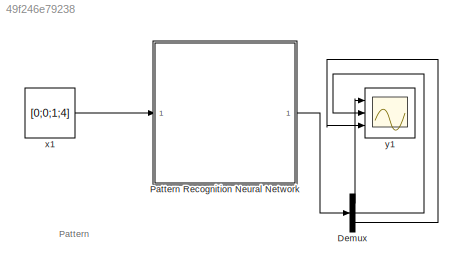
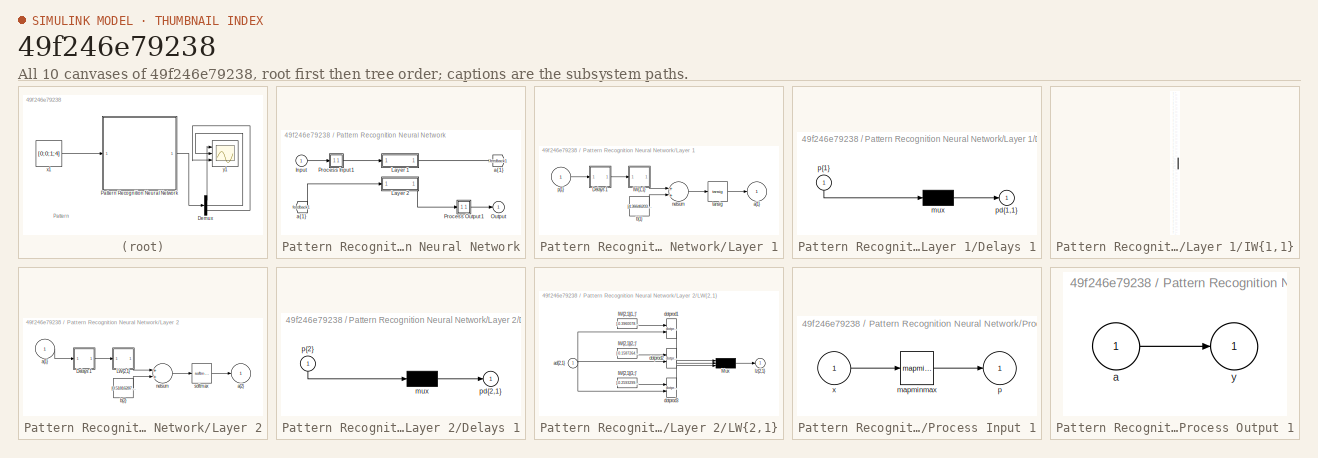
[diagram: thumbnail index - all 10 canvases of the model, root first then tree order]
MODEL slx_49f246e79238
KIND model
BLOCK [Demux] Demux
  DisplayOption = bar
  Outputs = 3
  Ports = [1, 3]
BLOCK [SubSystem] Pattern Recognition Neural Network
  Ports = [1, 1]
  RequestExecContextInheritance = off
BLOCK [From] Pattern Recognition Neural Network/ a{1} 
  GotoTag = feedback1
BLOCK [Inport] Pattern Recognition Neural Network/Input
  IconDisplay = Port number
  PortDimensions = 4
BLOCK [SubSystem] Pattern Recognition Neural Network/Layer 1
  Ports = [1, 1]
  RequestExecContextInheritance = off
BLOCK [SubSystem] Pattern Recognition Neural Network/Layer 1/Delays 1
  Ports = [1, 1]
  RequestExecContextInheritance = off
BLOCK [Mux] Pattern Recognition Neural Network/Layer 1/Delays 1/mux
  Inputs = 1
  Ports = [1, 1]
BLOCK [Outport] Pattern Recognition Neural Network/Layer 1/Delays 1/pd{1,1}
  IconDisplay = Port number
BLOCK [Inport] Pattern Recognition Neural Network/Layer 1/Delays 1/p{1}
  IconDisplay = Port number
  PortDimensions = 4
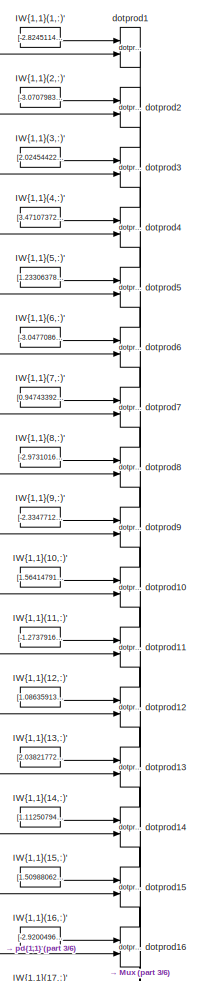
[diagram: Pattern Recognition Neural Network/Layer 1/IW{1,1} - part 1/6, top center region]
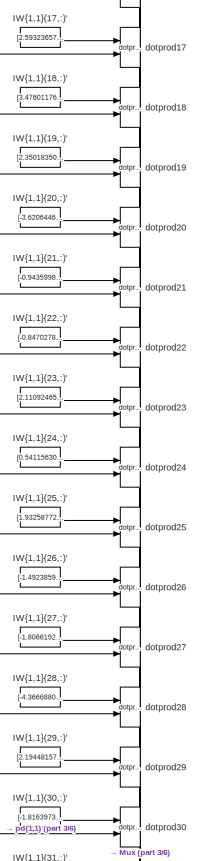
[diagram: Pattern Recognition Neural Network/Layer 1/IW{1,1} - part 2/6, top center region]
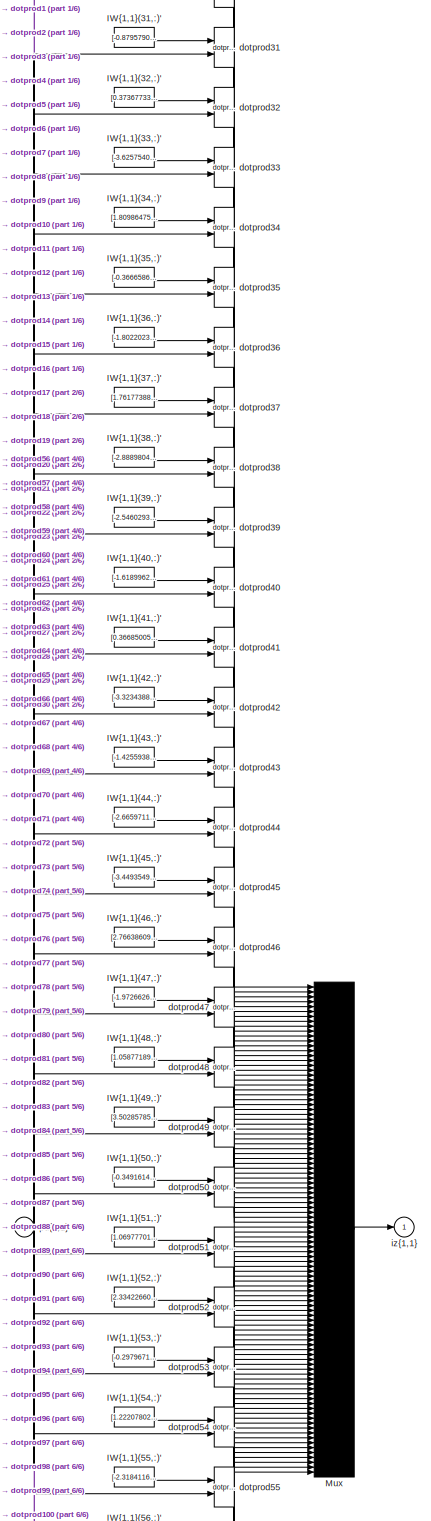
[diagram: Pattern Recognition Neural Network/Layer 1/IW{1,1} - part 3/6, full width, middle band]
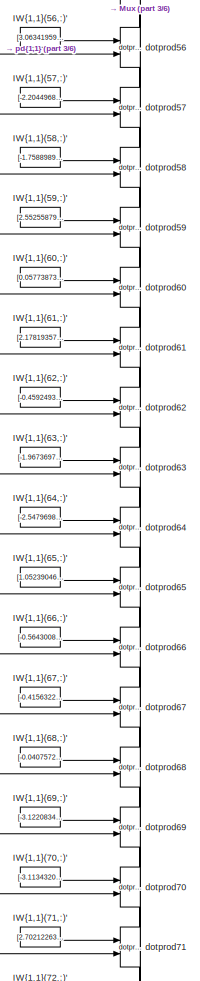
[diagram: Pattern Recognition Neural Network/Layer 1/IW{1,1} - part 4/6, central region]
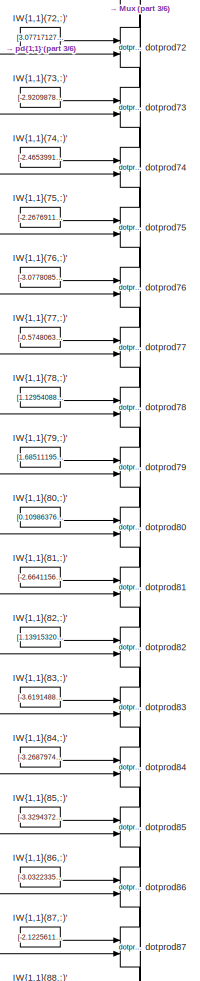
[diagram: Pattern Recognition Neural Network/Layer 1/IW{1,1} - part 5/6, bottom center region]
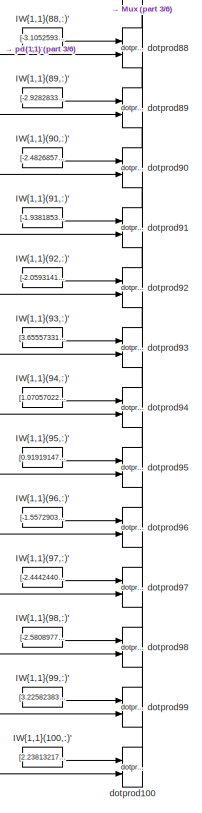
[diagram: Pattern Recognition Neural Network/Layer 1/IW{1,1} - part 6/6, bottom center region]
BLOCK [SubSystem] Pattern Recognition Neural Network/Layer 1/IW{1,1}
  Ports = [1, 1]
  RequestExecContextInheritance = off
BLOCK [Constant] Pattern Recognition Neural Network/Layer 1/IW{1,1}/IW{1,1}(1,:)'
  Value = [-2.8245114386849695;0.38651486208686725;2.9357228347405564;-1.8061070535376862]
BLOCK [Constant] Pattern Recognition Neural Network/Layer 1/IW{1,1}/IW{1,1}(10,:)'
  Value = [1.5641479167763546;2.1621989909151043;1.2285768636088201;3.2321786561007295]
BLOCK [Constant] Pattern Recognition Neural Network/Layer 1/IW{1,1}/IW{1,1}(100,:)'
  Value = [2.2381321796131246;1.2861007289612707;-0.67730023760817171;3.5572780668831947]
BLOCK [Constant] Pattern Recognition Neural Network/Layer 1/IW{1,1}/IW{1,1}(11,:)'
  Value = [-1.2737916108243736;-0.64018074012753978;-0.93801497415751367;-3.7475199961202277]
BLOCK [Constant] Pattern Recognition Neural Network/Layer 1/IW{1,1}/IW{1,1}(12,:)'
  Value = [1.0863591392174892;3.4611134525989322;-2.3454584130887262;-0.93943288148967696]
BLOCK [Constant] Pattern Recognition Neural Network/Layer 1/IW{1,1}/IW{1,1}(13,:)'
  Value = [2.038217720726375;-0.74327641015251389;-3.4075352872823133;1.4331081962686845]
BLOCK [Constant] Pattern Recognition Neural Network/Layer 1/IW{1,1}/IW{1,1}(14,:)'
  Value = [1.1125079489917162;2.229004972857656;-0.84354264288793723;3.6781251427883253]
BLOCK [Constant] Pattern Recognition Neural Network/Layer 1/IW{1,1}/IW{1,1}(15,:)'
  Value = [1.5098806266080216;-2.355964575198696;-3.2035751992887893;-1.7658259175978845]
BLOCK [Constant] Pattern Recognition Neural Network/Layer 1/IW{1,1}/IW{1,1}(16,:)'
  Value = [-2.9200496568409702;-0.89397244103805096;2.1256680655356091;-2.5612600234195138]
BLOCK [Constant] Pattern Recognition Neural Network/Layer 1/IW{1,1}/IW{1,1}(17,:)'
  Value = [2.5932365787057754;-3.4242025042756752;-0.87688636234114425;1.348405505721253]
BLOCK [Constant] Pattern Recognition Neural Network/Layer 1/IW{1,1}/IW{1,1}(18,:)'
  Value = [3.4760117674047839;1.8202508345539326;2.2931511309542216;-0.013812715949637632]
BLOCK [Constant] Pattern Recognition Neural Network/Layer 1/IW{1,1}/IW{1,1}(19,:)'
  Value = [2.3501835025089122;3.0199759495895666;1.8207102049225898;0.86663191104687776]
BLOCK [Constant] Pattern Recognition Neural Network/Layer 1/IW{1,1}/IW{1,1}(2,:)'
  Value = [-3.0707983284067546;-1.2915293428849808;-0.37553303335606314;-2.946611774820024]
BLOCK [Constant] Pattern Recognition Neural Network/Layer 1/IW{1,1}/IW{1,1}(20,:)'
  Value = [-3.6206446977893414;-1.233422909538971;0.83001651074689053;-2.0788267931784787]
BLOCK [Constant] Pattern Recognition Neural Network/Layer 1/IW{1,1}/IW{1,1}(21,:)'
  Value = [-0.94359986834631659;1.3900630322159238;-2.8398202928775342;-3.0065032304187285]
BLOCK [Constant] Pattern Recognition Neural Network/Layer 1/IW{1,1}/IW{1,1}(22,:)'
  Value = [-0.84702782407684396;-1.4135809029977422;3.3017262364646975;2.4038201068290337]
BLOCK [Constant] Pattern Recognition Neural Network/Layer 1/IW{1,1}/IW{1,1}(23,:)'
  Value = [2.1109246584552923;0.48239374032481236;-2.6995878339454604;2.8087367201557534]
BLOCK [Constant] Pattern Recognition Neural Network/Layer 1/IW{1,1}/IW{1,1}(24,:)'
  Value = [0.54115630618563815;2.0671766808546308;2.5576214575895064;2.7910582347170756]
BLOCK [Constant] Pattern Recognition Neural Network/Layer 1/IW{1,1}/IW{1,1}(25,:)'
  Value = [1.9325877212033897;0.93820715889474293;-2.3125500760476272;-3.0903331501489637]
BLOCK [Constant] Pattern Recognition Neural Network/Layer 1/IW{1,1}/IW{1,1}(26,:)'
  Value = [-1.4923859450438615;-2.5530126646024693;-1.4123642039042619;-3.2983975181572376]
BLOCK [Constant] Pattern Recognition Neural Network/Layer 1/IW{1,1}/IW{1,1}(27,:)'
  Value = [-1.8066192760421027;-1.053502594734242;-3.0646869608676695;-2.6054407197364342]
BLOCK [Constant] Pattern Recognition Neural Network/Layer 1/IW{1,1}/IW{1,1}(28,:)'
  Value = [-4.3666880229567075;-0.31650701880203841;1.2051757127274934;0.064885225002123348]
BLOCK [Constant] Pattern Recognition Neural Network/Layer 1/IW{1,1}/IW{1,1}(29,:)'
  Value = [2.194481579009727;-0.62896064181213829;-2.8844467222673198;-2.4888568406448606]
BLOCK [Constant] Pattern Recognition Neural Network/Layer 1/IW{1,1}/IW{1,1}(3,:)'
  Value = [2.0245442290322146;-2.0999293225297602;-2.9319102832597728;-1.0665068121491679]
BLOCK [Constant] Pattern Recognition Neural Network/Layer 1/IW{1,1}/IW{1,1}(30,:)'
  Value = [-1.8163973057996732;-0.793760040605482;-2.9907583562894966;2.4713784106632994]
BLOCK [Constant] Pattern Recognition Neural Network/Layer 1/IW{1,1}/IW{1,1}(31,:)'
  Value = [-0.8795790560998864;0.19201939872298571;1.9436280336141103;-3.6422406409586019]
BLOCK [Constant] Pattern Recognition Neural Network/Layer 1/IW{1,1}/IW{1,1}(32,:)'
  Value = [0.37367733746291559;1.9912936635921834;-1.1943544672931707;-3.7879070736974456]
BLOCK [Constant] Pattern Recognition Neural Network/Layer 1/IW{1,1}/IW{1,1}(33,:)'
  Value = [-3.6257540987273615;-1.1856987231539056;2.0890415551080794;0.80106105979388853]
BLOCK [Constant] Pattern Recognition Neural Network/Layer 1/IW{1,1}/IW{1,1}(34,:)'
  Value = [1.8098647517743982;-0.3601599777346095;-1.8148213794129044;3.5416592516683254]
BLOCK [Constant] Pattern Recognition Neural Network/Layer 1/IW{1,1}/IW{1,1}(35,:)'
  Value = [-0.36665866256054969;-3.7734064538998018;1.1055422193891613;-2.0205668907088481]
BLOCK [Constant] Pattern Recognition Neural Network/Layer 1/IW{1,1}/IW{1,1}(36,:)'
  Value = [-1.8022023111788112;-2.8283784042767075;-2.5932012206163675;-1.5652629153836546]
BLOCK [Constant] Pattern Recognition Neural Network/Layer 1/IW{1,1}/IW{1,1}(37,:)'
  Value = [1.7617738820952624;-1.9054784616287705;3.3898435159870708;-0.85013188433445341]
BLOCK [Constant] Pattern Recognition Neural Network/Layer 1/IW{1,1}/IW{1,1}(38,:)'
  Value = [-2.8889804602041722;-1.2453603125352555;2.2919664900994294;-2.0121637751344044]
BLOCK [Constant] Pattern Recognition Neural Network/Layer 1/IW{1,1}/IW{1,1}(39,:)'
  Value = [-2.5460293686629627;1.8098199308931526;3.1124450572809539;0.17052440610148217]
BLOCK [Constant] Pattern Recognition Neural Network/Layer 1/IW{1,1}/IW{1,1}(4,:)'
  Value = [3.4710737248528858;1.0882768223767059;2.2916233085170359;2.2449733135272192]
BLOCK [Constant] Pattern Recognition Neural Network/Layer 1/IW{1,1}/IW{1,1}(40,:)'
  Value = [-1.6189962293711282;2.7651773783694997;1.7642592534839496;2.5427620204925399]
BLOCK [Constant] Pattern Recognition Neural Network/Layer 1/IW{1,1}/IW{1,1}(41,:)'
  Value = [0.36685005918595709;4.05338628754411;-1.1262898885311063;1.2804673233521298]
BLOCK [Constant] Pattern Recognition Neural Network/Layer 1/IW{1,1}/IW{1,1}(42,:)'
  Value = [-3.3234388104323913;-0.077649763970148375;1.1686794714913014;-2.8208855358937526]
BLOCK [Constant] Pattern Recognition Neural Network/Layer 1/IW{1,1}/IW{1,1}(43,:)'
  Value = [-1.425593834467229;-3.6898645994323833;1.0933309726961182;-1.6740737435437583]
BLOCK [Constant] Pattern Recognition Neural Network/Layer 1/IW{1,1}/IW{1,1}(44,:)'
  Value = [-2.665971144203394;1.7432125243486809;0.35488263071730192;-3.0348026423883288]
BLOCK [Constant] Pattern Recognition Neural Network/Layer 1/IW{1,1}/IW{1,1}(45,:)'
  Value = [-3.4493549558035586;2.0814076517768396;-1.9244635435482413;0.072515414853072377]
BLOCK [Constant] Pattern Recognition Neural Network/Layer 1/IW{1,1}/IW{1,1}(46,:)'
  Value = [2.7663860931035642;2.4022123559091084;-2.4386757695671801;-0.64616133371239726]
BLOCK [Constant] Pattern Recognition Neural Network/Layer 1/IW{1,1}/IW{1,1}(47,:)'
  Value = [-1.9726626037926451;2.0158040387864564;-0.29306745840281473;3.3319598867655764]
BLOCK [Constant] Pattern Recognition Neural Network/Layer 1/IW{1,1}/IW{1,1}(48,:)'
  Value = [1.058771898375219;-3.1260125319796628;-2.0925211842276332;2.1793350158457874]
BLOCK [Constant] Pattern Recognition Neural Network/Layer 1/IW{1,1}/IW{1,1}(49,:)'
  Value = [3.502857856487239;1.3820747336574504;2.3199536515686727;-0.3476083670572987]
BLOCK [Constant] Pattern Recognition Neural Network/Layer 1/IW{1,1}/IW{1,1}(5,:)'
  Value = [1.2330637880102504;3.5029417956145261;1.0647209871479517;2.1866263214281632]
BLOCK [Constant] Pattern Recognition Neural Network/Layer 1/IW{1,1}/IW{1,1}(50,:)'
  Value = [-0.34916143240769559;-0.31493324079946328;3.4987864848593913;2.6575690260893836]
BLOCK [Constant] Pattern Recognition Neural Network/Layer 1/IW{1,1}/IW{1,1}(51,:)'
  Value = [1.0697770113825351;-1.4439481713616922;-3.3805246871951065;-2.3333358676310576]
BLOCK [Constant] Pattern Recognition Neural Network/Layer 1/IW{1,1}/IW{1,1}(52,:)'
  Value = [2.3342266098897908;-3.6115457123083869;-0.032520333621359865;-1.1273498698402562]
BLOCK [Constant] Pattern Recognition Neural Network/Layer 1/IW{1,1}/IW{1,1}(53,:)'
  Value = [-0.29796719489536294;2.0995927091400524;-2.7516072661552426;2.7280078591027825]
BLOCK [Constant] Pattern Recognition Neural Network/Layer 1/IW{1,1}/IW{1,1}(54,:)'
  Value = [1.2220780272784197;-1.9297075481033654;2.4272859502753055;2.9448342399637015]
BLOCK [Constant] Pattern Recognition Neural Network/Layer 1/IW{1,1}/IW{1,1}(55,:)'
  Value = [-2.3184116141225481;-1.9783891724108036;2.904026544601189;1.3438391301438726]
BLOCK [Constant] Pattern Recognition Neural Network/Layer 1/IW{1,1}/IW{1,1}(56,:)'
  Value = [3.0634195910029209;1.194838717589473;-2.8429575492071506;0.86750178727260308]
BLOCK [Constant] Pattern Recognition Neural Network/Layer 1/IW{1,1}/IW{1,1}(57,:)'
  Value = [-2.2044968166038204;2.0502746006806114;3.0578237732741744;-1.2073871714453543]
BLOCK [Constant] Pattern Recognition Neural Network/Layer 1/IW{1,1}/IW{1,1}(58,:)'
  Value = [-1.7588989873557608;0.1282705572426823;-2.8844616213715462;2.8715090007577868]
BLOCK [Constant] Pattern Recognition Neural Network/Layer 1/IW{1,1}/IW{1,1}(59,:)'
  Value = [2.5525587973675297;1.6438898213973285;1.2492834504746733;-2.9948817693094592]
BLOCK [Constant] Pattern Recognition Neural Network/Layer 1/IW{1,1}/IW{1,1}(6,:)'
  Value = [-3.0477086116096661;-2.6477441484490867;-1.1615209443996468;1.6192270839191927]
BLOCK [Constant] Pattern Recognition Neural Network/Layer 1/IW{1,1}/IW{1,1}(60,:)'
  Value = [0.057738735558638281;-3.2796021568171843;2.1540920372835655;2.1597214375918128]
BLOCK [Constant] Pattern Recognition Neural Network/Layer 1/IW{1,1}/IW{1,1}(61,:)'
  Value = [2.178193574274494;3.6548694603426011;0.22292778048267128;1.2023859801879253]
BLOCK [Constant] Pattern Recognition Neural Network/Layer 1/IW{1,1}/IW{1,1}(62,:)'
  Value = [-0.4592493544217896;0.76901846192672174;3.2695900038403281;2.6945374963168147]
BLOCK [Constant] Pattern Recognition Neural Network/Layer 1/IW{1,1}/IW{1,1}(63,:)'
  Value = [-1.9673697181412577;1.6606134301136446;3.4885048113223314;-0.9181069100548771]
BLOCK [Constant] Pattern Recognition Neural Network/Layer 1/IW{1,1}/IW{1,1}(64,:)'
  Value = [-2.5479698972063956;-3.1344085367844774;1.1815436213587516;1.6990118542432682]
BLOCK [Constant] Pattern Recognition Neural Network/Layer 1/IW{1,1}/IW{1,1}(65,:)'
  Value = [1.0523904626513947;2.1199794031499684;-2.940932749253184;2.1298450182663631]
BLOCK [Constant] Pattern Recognition Neural Network/Layer 1/IW{1,1}/IW{1,1}(66,:)'
  Value = [-0.56430083590262026;2.2877343007784452;-3.1656977846033962;-2.1911697326044726]
BLOCK [Constant] Pattern Recognition Neural Network/Layer 1/IW{1,1}/IW{1,1}(67,:)'
  Value = [-0.41563223270685523;-3.6481772507274304;-2.499018094010296;0.88017479569876789]
BLOCK [Constant] Pattern Recognition Neural Network/Layer 1/IW{1,1}/IW{1,1}(68,:)'
  Value = [-0.040757296581099292;-0.051959224539479584;-3.0071917694146353;3.1885155738914133]
BLOCK [Constant] Pattern Recognition Neural Network/Layer 1/IW{1,1}/IW{1,1}(69,:)'
  Value = [-3.1220834086475415;-1.1995851824560306;-2.8551383403010262;0.027287262866671803]
BLOCK [Constant] Pattern Recognition Neural Network/Layer 1/IW{1,1}/IW{1,1}(7,:)'
  Value = [0.94743392846687613;-1.5264771966283808;3.2353519375426081;-2.6424893486036507]
BLOCK [Constant] Pattern Recognition Neural Network/Layer 1/IW{1,1}/IW{1,1}(70,:)'
  Value = [-3.1134320515728526;0.55152231468255652;1.626548174102447;-2.5412538809319418]
BLOCK [Constant] Pattern Recognition Neural Network/Layer 1/IW{1,1}/IW{1,1}(71,:)'
  Value = [2.7021226366716631;-0.50541974330884998;3.281135676371532;0.96523132208148366]
BLOCK [Constant] Pattern Recognition Neural Network/Layer 1/IW{1,1}/IW{1,1}(72,:)'
  Value = [3.0771712744009538;-1.1959756870303857;-2.6252521627199141;-1.9153915552309482]
BLOCK [Constant] Pattern Recognition Neural Network/Layer 1/IW{1,1}/IW{1,1}(73,:)'
  Value = [-2.9209878657205688;-2.4349859161372023;-0.76305015013136013;1.9204971092528562]
BLOCK [Constant] Pattern Recognition Neural Network/Layer 1/IW{1,1}/IW{1,1}(74,:)'
  Value = [-2.4653991228308079;-1.7105145442677634;3.2391796573974223;-0.67005980680343558]
BLOCK [Constant] Pattern Recognition Neural Network/Layer 1/IW{1,1}/IW{1,1}(75,:)'
  Value = [-2.267691175126231;-3.0399694931462928;2.4392358260976867;-0.060355799974554432]
BLOCK [Constant] Pattern Recognition Neural Network/Layer 1/IW{1,1}/IW{1,1}(76,:)'
  Value = [-3.0778085267845761;2.6958634787735165;0.95162145531187281;1.2382727207038637]
BLOCK [Constant] Pattern Recognition Neural Network/Layer 1/IW{1,1}/IW{1,1}(77,:)'
  Value = [-0.57480630863031568;0.90426032196326522;3.1968278764569682;2.89941091860676]
BLOCK [Constant] Pattern Recognition Neural Network/Layer 1/IW{1,1}/IW{1,1}(78,:)'
  Value = [1.1295408820054786;3.4476711829344269;2.2934005080284012;-1.1566168662486918]
BLOCK [Constant] Pattern Recognition Neural Network/Layer 1/IW{1,1}/IW{1,1}(79,:)'
  Value = [1.6851119552077096;-2.80984434744519;-1.2586144336096357;2.4927763981918165]
BLOCK [Constant] Pattern Recognition Neural Network/Layer 1/IW{1,1}/IW{1,1}(8,:)'
  Value = [-2.9731016579738578;-0.46072176498173123;-1.8869427250129074;2.9487485580196626]
BLOCK [Constant] Pattern Recognition Neural Network/Layer 1/IW{1,1}/IW{1,1}(80,:)'
  Value = [0.10986376103259864;3.6289351130998431;1.5884413614391659;1.9626966449394632]
BLOCK [Constant] Pattern Recognition Neural Network/Layer 1/IW{1,1}/IW{1,1}(81,:)'
  Value = [-2.6641156528215735;0.95494374564848061;-2.3132286629283572;2.7435234802742903]
BLOCK [Constant] Pattern Recognition Neural Network/Layer 1/IW{1,1}/IW{1,1}(82,:)'
  Value = [1.1391532079316229;0.95471771045647935;-1.892605865014519;-4.033224416235214]
BLOCK [Constant] Pattern Recognition Neural Network/Layer 1/IW{1,1}/IW{1,1}(83,:)'
  Value = [-3.6191488264791936;-0.46250365175756186;1.9945774416328388;-1.4515216701912226]
BLOCK [Constant] Pattern Recognition Neural Network/Layer 1/IW{1,1}/IW{1,1}(84,:)'
  Value = [-3.2687974301995197;-2.229172771515382;0.16194897995758317;1.5825906958523899]
BLOCK [Constant] Pattern Recognition Neural Network/Layer 1/IW{1,1}/IW{1,1}(85,:)'
  Value = [-3.3294372820830271;2.088957598708773;-0.73365016977139019;-1.9798481458784989]
BLOCK [Constant] Pattern Recognition Neural Network/Layer 1/IW{1,1}/IW{1,1}(86,:)'
  Value = [-3.0322335699285654;-2.2132193860281379;0.90451349582500817;-2.1428092983564366]
BLOCK [Constant] Pattern Recognition Neural Network/Layer 1/IW{1,1}/IW{1,1}(87,:)'
  Value = [-2.1225611025930413;-2.9757797162472035;1.7799430128429783;1.5299502626769723]
BLOCK [Constant] Pattern Recognition Neural Network/Layer 1/IW{1,1}/IW{1,1}(88,:)'
  Value = [-3.1052593198151142;2.9451991532964756;0.75370274615210042;1.1534516394237804]
BLOCK [Constant] Pattern Recognition Neural Network/Layer 1/IW{1,1}/IW{1,1}(89,:)'
  Value = [-2.9282833972889426;2.5711191100725528;0.88631963370768463;1.6765606849879042]
BLOCK [Constant] Pattern Recognition Neural Network/Layer 1/IW{1,1}/IW{1,1}(9,:)'
  Value = [-2.3347712750275709;-2.5247476204767958;0.89513823018432215;2.5579987960539814]
BLOCK [Constant] Pattern Recognition Neural Network/Layer 1/IW{1,1}/IW{1,1}(90,:)'
  Value = [-2.4826857353762612;2.7732041852642317;1.0472839174135899;2.101112058062927]
BLOCK [Constant] Pattern Recognition Neural Network/Layer 1/IW{1,1}/IW{1,1}(91,:)'
  Value = [-1.9381853011012768;1.3382308239612077;0.23677830915049275;-3.3232319715429695]
BLOCK [Constant] Pattern Recognition Neural Network/Layer 1/IW{1,1}/IW{1,1}(92,:)'
  Value = [-2.059314103562278;-0.63135864767261363;-3.7238104986201623;-1.4742963155907849]
BLOCK [Constant] Pattern Recognition Neural Network/Layer 1/IW{1,1}/IW{1,1}(93,:)'
  Value = [3.6555733118344174;-1.0732304542677928;2.2046184298100031;-0.16206159695540243]
BLOCK [Constant] Pattern Recognition Neural Network/Layer 1/IW{1,1}/IW{1,1}(94,:)'
  Value = [1.070570223833659;2.0357455912007598;3.3433477604916071;-1.4051299173259166]
BLOCK [Constant] Pattern Recognition Neural Network/Layer 1/IW{1,1}/IW{1,1}(95,:)'
  Value = [0.91919147758033382;-2.5336680739095385;-2.0680080299762547;2.879707747586568]
BLOCK [Constant] Pattern Recognition Neural Network/Layer 1/IW{1,1}/IW{1,1}(96,:)'
  Value = [-1.557290353624005;2.2299914711758486;2.8053991186234932;1.9465335027755257]
BLOCK [Constant] Pattern Recognition Neural Network/Layer 1/IW{1,1}/IW{1,1}(97,:)'
  Value = [-2.4442440140735502;2.6416920517144078;-1.4914788489089772;-2.0162845699389651]
BLOCK [Constant] Pattern Recognition Neural Network/Layer 1/IW{1,1}/IW{1,1}(98,:)'
  Value = [-2.5808977950520728;2.3569876058987962;2.2791107048880446;1.3095540569000563]
BLOCK [Constant] Pattern Recognition Neural Network/Layer 1/IW{1,1}/IW{1,1}(99,:)'
  Value = [3.2258238354720539;-0.33147016355240222;-0.43368942172234409;-2.9950075796368889]
BLOCK [Mux] Pattern Recognition Neural Network/Layer 1/IW{1,1}/Mux
  Inputs = 100
  Ports = [100, 1]
BLOCK [Reference] Pattern Recognition Neural Network/Layer 1/IW{1,1}/dotprod1  REF=neural/Weight Functions/dotprod
  Ports = [2, 1]
  SourceBlock = neural/Weight Functions/dotprod
  SourceType = DOTPROD
BLOCK [Reference] Pattern Recognition Neural Network/Layer 1/IW{1,1}/dotprod10  REF=neural/Weight Functions/dotprod
  Ports = [2, 1]
  SourceBlock = neural/Weight Functions/dotprod
  SourceType = DOTPROD
BLOCK [Reference] Pattern Recognition Neural Network/Layer 1/IW{1,1}/dotprod100  REF=neural/Weight Functions/dotprod
  Ports = [2, 1]
  SourceBlock = neural/Weight Functions/dotprod
  SourceType = DOTPROD
BLOCK [Reference] Pattern Recognition Neural Network/Layer 1/IW{1,1}/dotprod11  REF=neural/Weight Functions/dotprod
  Ports = [2, 1]
  SourceBlock = neural/Weight Functions/dotprod
  SourceType = DOTPROD
BLOCK [Reference] Pattern Recognition Neural Network/Layer 1/IW{1,1}/dotprod12  REF=neural/Weight Functions/dotprod
  Ports = [2, 1]
  SourceBlock = neural/Weight Functions/dotprod
  SourceType = DOTPROD
BLOCK [Reference] Pattern Recognition Neural Network/Layer 1/IW{1,1}/dotprod13  REF=neural/Weight Functions/dotprod
  Ports = [2, 1]
  SourceBlock = neural/Weight Functions/dotprod
  SourceType = DOTPROD
BLOCK [Reference] Pattern Recognition Neural Network/Layer 1/IW{1,1}/dotprod14  REF=neural/Weight Functions/dotprod
  Ports = [2, 1]
  SourceBlock = neural/Weight Functions/dotprod
  SourceType = DOTPROD
BLOCK [Reference] Pattern Recognition Neural Network/Layer 1/IW{1,1}/dotprod15  REF=neural/Weight Functions/dotprod
  Ports = [2, 1]
  SourceBlock = neural/Weight Functions/dotprod
  SourceType = DOTPROD
BLOCK [Reference] Pattern Recognition Neural Network/Layer 1/IW{1,1}/dotprod16  REF=neural/Weight Functions/dotprod
  Ports = [2, 1]
  SourceBlock = neural/Weight Functions/dotprod
  SourceType = DOTPROD
BLOCK [Reference] Pattern Recognition Neural Network/Layer 1/IW{1,1}/dotprod17  REF=neural/Weight Functions/dotprod
  Ports = [2, 1]
  SourceBlock = neural/Weight Functions/dotprod
  SourceType = DOTPROD
BLOCK [Reference] Pattern Recognition Neural Network/Layer 1/IW{1,1}/dotprod18  REF=neural/Weight Functions/dotprod
  Ports = [2, 1]
  SourceBlock = neural/Weight Functions/dotprod
  SourceType = DOTPROD
BLOCK [Reference] Pattern Recognition Neural Network/Layer 1/IW{1,1}/dotprod19  REF=neural/Weight Functions/dotprod
  Ports = [2, 1]
  SourceBlock = neural/Weight Functions/dotprod
  SourceType = DOTPROD
BLOCK [Reference] Pattern Recognition Neural Network/Layer 1/IW{1,1}/dotprod2  REF=neural/Weight Functions/dotprod
  Ports = [2, 1]
  SourceBlock = neural/Weight Functions/dotprod
  SourceType = DOTPROD
BLOCK [Reference] Pattern Recognition Neural Network/Layer 1/IW{1,1}/dotprod20  REF=neural/Weight Functions/dotprod
  Ports = [2, 1]
  SourceBlock = neural/Weight Functions/dotprod
  SourceType = DOTPROD
BLOCK [Reference] Pattern Recognition Neural Network/Layer 1/IW{1,1}/dotprod21  REF=neural/Weight Functions/dotprod
  Ports = [2, 1]
  SourceBlock = neural/Weight Functions/dotprod
  SourceType = DOTPROD
BLOCK [Reference] Pattern Recognition Neural Network/Layer 1/IW{1,1}/dotprod22  REF=neural/Weight Functions/dotprod
  Ports = [2, 1]
  SourceBlock = neural/Weight Functions/dotprod
  SourceType = DOTPROD
BLOCK [Reference] Pattern Recognition Neural Network/Layer 1/IW{1,1}/dotprod23  REF=neural/Weight Functions/dotprod
  Ports = [2, 1]
  SourceBlock = neural/Weight Functions/dotprod
  SourceType = DOTPROD
BLOCK [Reference] Pattern Recognition Neural Network/Layer 1/IW{1,1}/dotprod24  REF=neural/Weight Functions/dotprod
  Ports = [2, 1]
  SourceBlock = neural/Weight Functions/dotprod
  SourceType = DOTPROD
BLOCK [Reference] Pattern Recognition Neural Network/Layer 1/IW{1,1}/dotprod25  REF=neural/Weight Functions/dotprod
  Ports = [2, 1]
  SourceBlock = neural/Weight Functions/dotprod
  SourceType = DOTPROD
BLOCK [Reference] Pattern Recognition Neural Network/Layer 1/IW{1,1}/dotprod26  REF=neural/Weight Functions/dotprod
  Ports = [2, 1]
  SourceBlock = neural/Weight Functions/dotprod
  SourceType = DOTPROD
BLOCK [Reference] Pattern Recognition Neural Network/Layer 1/IW{1,1}/dotprod27  REF=neural/Weight Functions/dotprod
  Ports = [2, 1]
  SourceBlock = neural/Weight Functions/dotprod
  SourceType = DOTPROD
BLOCK [Reference] Pattern Recognition Neural Network/Layer 1/IW{1,1}/dotprod28  REF=neural/Weight Functions/dotprod
  Ports = [2, 1]
  SourceBlock = neural/Weight Functions/dotprod
  SourceType = DOTPROD
BLOCK [Reference] Pattern Recognition Neural Network/Layer 1/IW{1,1}/dotprod29  REF=neural/Weight Functions/dotprod
  Ports = [2, 1]
  SourceBlock = neural/Weight Functions/dotprod
  SourceType = DOTPROD
BLOCK [Reference] Pattern Recognition Neural Network/Layer 1/IW{1,1}/dotprod3  REF=neural/Weight Functions/dotprod
  Ports = [2, 1]
  SourceBlock = neural/Weight Functions/dotprod
  SourceType = DOTPROD
BLOCK [Reference] Pattern Recognition Neural Network/Layer 1/IW{1,1}/dotprod30  REF=neural/Weight Functions/dotprod
  Ports = [2, 1]
  SourceBlock = neural/Weight Functions/dotprod
  SourceType = DOTPROD
BLOCK [Reference] Pattern Recognition Neural Network/Layer 1/IW{1,1}/dotprod31  REF=neural/Weight Functions/dotprod
  Ports = [2, 1]
  SourceBlock = neural/Weight Functions/dotprod
  SourceType = DOTPROD
BLOCK [Reference] Pattern Recognition Neural Network/Layer 1/IW{1,1}/dotprod32  REF=neural/Weight Functions/dotprod
  Ports = [2, 1]
  SourceBlock = neural/Weight Functions/dotprod
  SourceType = DOTPROD
BLOCK [Reference] Pattern Recognition Neural Network/Layer 1/IW{1,1}/dotprod33  REF=neural/Weight Functions/dotprod
  Ports = [2, 1]
  SourceBlock = neural/Weight Functions/dotprod
  SourceType = DOTPROD
BLOCK [Reference] Pattern Recognition Neural Network/Layer 1/IW{1,1}/dotprod34  REF=neural/Weight Functions/dotprod
  Ports = [2, 1]
  SourceBlock = neural/Weight Functions/dotprod
  SourceType = DOTPROD
BLOCK [Reference] Pattern Recognition Neural Network/Layer 1/IW{1,1}/dotprod35  REF=neural/Weight Functions/dotprod
  Ports = [2, 1]
  SourceBlock = neural/Weight Functions/dotprod
  SourceType = DOTPROD
BLOCK [Reference] Pattern Recognition Neural Network/Layer 1/IW{1,1}/dotprod36  REF=neural/Weight Functions/dotprod
  Ports = [2, 1]
  SourceBlock = neural/Weight Functions/dotprod
  SourceType = DOTPROD
BLOCK [Reference] Pattern Recognition Neural Network/Layer 1/IW{1,1}/dotprod37  REF=neural/Weight Functions/dotprod
  Ports = [2, 1]
  SourceBlock = neural/Weight Functions/dotprod
  SourceType = DOTPROD
BLOCK [Reference] Pattern Recognition Neural Network/Layer 1/IW{1,1}/dotprod38  REF=neural/Weight Functions/dotprod
  Ports = [2, 1]
  SourceBlock = neural/Weight Functions/dotprod
  SourceType = DOTPROD
BLOCK [Reference] Pattern Recognition Neural Network/Layer 1/IW{1,1}/dotprod39  REF=neural/Weight Functions/dotprod
  Ports = [2, 1]
  SourceBlock = neural/Weight Functions/dotprod
  SourceType = DOTPROD
BLOCK [Reference] Pattern Recognition Neural Network/Layer 1/IW{1,1}/dotprod4  REF=neural/Weight Functions/dotprod
  Ports = [2, 1]
  SourceBlock = neural/Weight Functions/dotprod
  SourceType = DOTPROD
BLOCK [Reference] Pattern Recognition Neural Network/Layer 1/IW{1,1}/dotprod40  REF=neural/Weight Functions/dotprod
  Ports = [2, 1]
  SourceBlock = neural/Weight Functions/dotprod
  SourceType = DOTPROD
BLOCK [Reference] Pattern Recognition Neural Network/Layer 1/IW{1,1}/dotprod41  REF=neural/Weight Functions/dotprod
  Ports = [2, 1]
  SourceBlock = neural/Weight Functions/dotprod
  SourceType = DOTPROD
BLOCK [Reference] Pattern Recognition Neural Network/Layer 1/IW{1,1}/dotprod42  REF=neural/Weight Functions/dotprod
  Ports = [2, 1]
  SourceBlock = neural/Weight Functions/dotprod
  SourceType = DOTPROD
BLOCK [Reference] Pattern Recognition Neural Network/Layer 1/IW{1,1}/dotprod43  REF=neural/Weight Functions/dotprod
  Ports = [2, 1]
  SourceBlock = neural/Weight Functions/dotprod
  SourceType = DOTPROD
BLOCK [Reference] Pattern Recognition Neural Network/Layer 1/IW{1,1}/dotprod44  REF=neural/Weight Functions/dotprod
  Ports = [2, 1]
  SourceBlock = neural/Weight Functions/dotprod
  SourceType = DOTPROD
BLOCK [Reference] Pattern Recognition Neural Network/Layer 1/IW{1,1}/dotprod45  REF=neural/Weight Functions/dotprod
  Ports = [2, 1]
  SourceBlock = neural/Weight Functions/dotprod
  SourceType = DOTPROD
BLOCK [Reference] Pattern Recognition Neural Network/Layer 1/IW{1,1}/dotprod46  REF=neural/Weight Functions/dotprod
  Ports = [2, 1]
  SourceBlock = neural/Weight Functions/dotprod
  SourceType = DOTPROD
BLOCK [Reference] Pattern Recognition Neural Network/Layer 1/IW{1,1}/dotprod47  REF=neural/Weight Functions/dotprod
  Ports = [2, 1]
  SourceBlock = neural/Weight Functions/dotprod
  SourceType = DOTPROD
BLOCK [Reference] Pattern Recognition Neural Network/Layer 1/IW{1,1}/dotprod48  REF=neural/Weight Functions/dotprod
  Ports = [2, 1]
  SourceBlock = neural/Weight Functions/dotprod
  SourceType = DOTPROD
BLOCK [Reference] Pattern Recognition Neural Network/Layer 1/IW{1,1}/dotprod49  REF=neural/Weight Functions/dotprod
  Ports = [2, 1]
  SourceBlock = neural/Weight Functions/dotprod
  SourceType = DOTPROD
BLOCK [Reference] Pattern Recognition Neural Network/Layer 1/IW{1,1}/dotprod5  REF=neural/Weight Functions/dotprod
  Ports = [2, 1]
  SourceBlock = neural/Weight Functions/dotprod
  SourceType = DOTPROD
BLOCK [Reference] Pattern Recognition Neural Network/Layer 1/IW{1,1}/dotprod50  REF=neural/Weight Functions/dotprod
  Ports = [2, 1]
  SourceBlock = neural/Weight Functions/dotprod
  SourceType = DOTPROD
BLOCK [Reference] Pattern Recognition Neural Network/Layer 1/IW{1,1}/dotprod51  REF=neural/Weight Functions/dotprod
  Ports = [2, 1]
  SourceBlock = neural/Weight Functions/dotprod
  SourceType = DOTPROD
BLOCK [Reference] Pattern Recognition Neural Network/Layer 1/IW{1,1}/dotprod52  REF=neural/Weight Functions/dotprod
  Ports = [2, 1]
  SourceBlock = neural/Weight Functions/dotprod
  SourceType = DOTPROD
BLOCK [Reference] Pattern Recognition Neural Network/Layer 1/IW{1,1}/dotprod53  REF=neural/Weight Functions/dotprod
  Ports = [2, 1]
  SourceBlock = neural/Weight Functions/dotprod
  SourceType = DOTPROD
BLOCK [Reference] Pattern Recognition Neural Network/Layer 1/IW{1,1}/dotprod54  REF=neural/Weight Functions/dotprod
  Ports = [2, 1]
  SourceBlock = neural/Weight Functions/dotprod
  SourceType = DOTPROD
BLOCK [Reference] Pattern Recognition Neural Network/Layer 1/IW{1,1}/dotprod55  REF=neural/Weight Functions/dotprod
  Ports = [2, 1]
  SourceBlock = neural/Weight Functions/dotprod
  SourceType = DOTPROD
BLOCK [Reference] Pattern Recognition Neural Network/Layer 1/IW{1,1}/dotprod56  REF=neural/Weight Functions/dotprod
  Ports = [2, 1]
  SourceBlock = neural/Weight Functions/dotprod
  SourceType = DOTPROD
BLOCK [Reference] Pattern Recognition Neural Network/Layer 1/IW{1,1}/dotprod57  REF=neural/Weight Functions/dotprod
  Ports = [2, 1]
  SourceBlock = neural/Weight Functions/dotprod
  SourceType = DOTPROD
BLOCK [Reference] Pattern Recognition Neural Network/Layer 1/IW{1,1}/dotprod58  REF=neural/Weight Functions/dotprod
  Ports = [2, 1]
  SourceBlock = neural/Weight Functions/dotprod
  SourceType = DOTPROD
BLOCK [Reference] Pattern Recognition Neural Network/Layer 1/IW{1,1}/dotprod59  REF=neural/Weight Functions/dotprod
  Ports = [2, 1]
  SourceBlock = neural/Weight Functions/dotprod
  SourceType = DOTPROD
BLOCK [Reference] Pattern Recognition Neural Network/Layer 1/IW{1,1}/dotprod6  REF=neural/Weight Functions/dotprod
  Ports = [2, 1]
  SourceBlock = neural/Weight Functions/dotprod
  SourceType = DOTPROD
BLOCK [Reference] Pattern Recognition Neural Network/Layer 1/IW{1,1}/dotprod60  REF=neural/Weight Functions/dotprod
  Ports = [2, 1]
  SourceBlock = neural/Weight Functions/dotprod
  SourceType = DOTPROD
BLOCK [Reference] Pattern Recognition Neural Network/Layer 1/IW{1,1}/dotprod61  REF=neural/Weight Functions/dotprod
  Ports = [2, 1]
  SourceBlock = neural/Weight Functions/dotprod
  SourceType = DOTPROD
BLOCK [Reference] Pattern Recognition Neural Network/Layer 1/IW{1,1}/dotprod62  REF=neural/Weight Functions/dotprod
  Ports = [2, 1]
  SourceBlock = neural/Weight Functions/dotprod
  SourceType = DOTPROD
BLOCK [Reference] Pattern Recognition Neural Network/Layer 1/IW{1,1}/dotprod63  REF=neural/Weight Functions/dotprod
  Ports = [2, 1]
  SourceBlock = neural/Weight Functions/dotprod
  SourceType = DOTPROD
BLOCK [Reference] Pattern Recognition Neural Network/Layer 1/IW{1,1}/dotprod64  REF=neural/Weight Functions/dotprod
  Ports = [2, 1]
  SourceBlock = neural/Weight Functions/dotprod
  SourceType = DOTPROD
BLOCK [Reference] Pattern Recognition Neural Network/Layer 1/IW{1,1}/dotprod65  REF=neural/Weight Functions/dotprod
  Ports = [2, 1]
  SourceBlock = neural/Weight Functions/dotprod
  SourceType = DOTPROD
BLOCK [Reference] Pattern Recognition Neural Network/Layer 1/IW{1,1}/dotprod66  REF=neural/Weight Functions/dotprod
  Ports = [2, 1]
  SourceBlock = neural/Weight Functions/dotprod
  SourceType = DOTPROD
BLOCK [Reference] Pattern Recognition Neural Network/Layer 1/IW{1,1}/dotprod67  REF=neural/Weight Functions/dotprod
  Ports = [2, 1]
  SourceBlock = neural/Weight Functions/dotprod
  SourceType = DOTPROD
BLOCK [Reference] Pattern Recognition Neural Network/Layer 1/IW{1,1}/dotprod68  REF=neural/Weight Functions/dotprod
  Ports = [2, 1]
  SourceBlock = neural/Weight Functions/dotprod
  SourceType = DOTPROD
BLOCK [Reference] Pattern Recognition Neural Network/Layer 1/IW{1,1}/dotprod69  REF=neural/Weight Functions/dotprod
  Ports = [2, 1]
  SourceBlock = neural/Weight Functions/dotprod
  SourceType = DOTPROD
BLOCK [Reference] Pattern Recognition Neural Network/Layer 1/IW{1,1}/dotprod7  REF=neural/Weight Functions/dotprod
  Ports = [2, 1]
  SourceBlock = neural/Weight Functions/dotprod
  SourceType = DOTPROD
BLOCK [Reference] Pattern Recognition Neural Network/Layer 1/IW{1,1}/dotprod70  REF=neural/Weight Functions/dotprod
  Ports = [2, 1]
  SourceBlock = neural/Weight Functions/dotprod
  SourceType = DOTPROD
BLOCK [Reference] Pattern Recognition Neural Network/Layer 1/IW{1,1}/dotprod71  REF=neural/Weight Functions/dotprod
  Ports = [2, 1]
  SourceBlock = neural/Weight Functions/dotprod
  SourceType = DOTPROD
BLOCK [Reference] Pattern Recognition Neural Network/Layer 1/IW{1,1}/dotprod72  REF=neural/Weight Functions/dotprod
  Ports = [2, 1]
  SourceBlock = neural/Weight Functions/dotprod
  SourceType = DOTPROD
BLOCK [Reference] Pattern Recognition Neural Network/Layer 1/IW{1,1}/dotprod73  REF=neural/Weight Functions/dotprod
  Ports = [2, 1]
  SourceBlock = neural/Weight Functions/dotprod
  SourceType = DOTPROD
BLOCK [Reference] Pattern Recognition Neural Network/Layer 1/IW{1,1}/dotprod74  REF=neural/Weight Functions/dotprod
  Ports = [2, 1]
  SourceBlock = neural/Weight Functions/dotprod
  SourceType = DOTPROD
BLOCK [Reference] Pattern Recognition Neural Network/Layer 1/IW{1,1}/dotprod75  REF=neural/Weight Functions/dotprod
  Ports = [2, 1]
  SourceBlock = neural/Weight Functions/dotprod
  SourceType = DOTPROD
BLOCK [Reference] Pattern Recognition Neural Network/Layer 1/IW{1,1}/dotprod76  REF=neural/Weight Functions/dotprod
  Ports = [2, 1]
  SourceBlock = neural/Weight Functions/dotprod
  SourceType = DOTPROD
BLOCK [Reference] Pattern Recognition Neural Network/Layer 1/IW{1,1}/dotprod77  REF=neural/Weight Functions/dotprod
  Ports = [2, 1]
  SourceBlock = neural/Weight Functions/dotprod
  SourceType = DOTPROD
BLOCK [Reference] Pattern Recognition Neural Network/Layer 1/IW{1,1}/dotprod78  REF=neural/Weight Functions/dotprod
  Ports = [2, 1]
  SourceBlock = neural/Weight Functions/dotprod
  SourceType = DOTPROD
BLOCK [Reference] Pattern Recognition Neural Network/Layer 1/IW{1,1}/dotprod79  REF=neural/Weight Functions/dotprod
  Ports = [2, 1]
  SourceBlock = neural/Weight Functions/dotprod
  SourceType = DOTPROD
BLOCK [Reference] Pattern Recognition Neural Network/Layer 1/IW{1,1}/dotprod8  REF=neural/Weight Functions/dotprod
  Ports = [2, 1]
  SourceBlock = neural/Weight Functions/dotprod
  SourceType = DOTPROD
BLOCK [Reference] Pattern Recognition Neural Network/Layer 1/IW{1,1}/dotprod80  REF=neural/Weight Functions/dotprod
  Ports = [2, 1]
  SourceBlock = neural/Weight Functions/dotprod
  SourceType = DOTPROD
BLOCK [Reference] Pattern Recognition Neural Network/Layer 1/IW{1,1}/dotprod81  REF=neural/Weight Functions/dotprod
  Ports = [2, 1]
  SourceBlock = neural/Weight Functions/dotprod
  SourceType = DOTPROD
BLOCK [Reference] Pattern Recognition Neural Network/Layer 1/IW{1,1}/dotprod82  REF=neural/Weight Functions/dotprod
  Ports = [2, 1]
  SourceBlock = neural/Weight Functions/dotprod
  SourceType = DOTPROD
BLOCK [Reference] Pattern Recognition Neural Network/Layer 1/IW{1,1}/dotprod83  REF=neural/Weight Functions/dotprod
  Ports = [2, 1]
  SourceBlock = neural/Weight Functions/dotprod
  SourceType = DOTPROD
BLOCK [Reference] Pattern Recognition Neural Network/Layer 1/IW{1,1}/dotprod84  REF=neural/Weight Functions/dotprod
  Ports = [2, 1]
  SourceBlock = neural/Weight Functions/dotprod
  SourceType = DOTPROD
BLOCK [Reference] Pattern Recognition Neural Network/Layer 1/IW{1,1}/dotprod85  REF=neural/Weight Functions/dotprod
  Ports = [2, 1]
  SourceBlock = neural/Weight Functions/dotprod
  SourceType = DOTPROD
BLOCK [Reference] Pattern Recognition Neural Network/Layer 1/IW{1,1}/dotprod86  REF=neural/Weight Functions/dotprod
  Ports = [2, 1]
  SourceBlock = neural/Weight Functions/dotprod
  SourceType = DOTPROD
BLOCK [Reference] Pattern Recognition Neural Network/Layer 1/IW{1,1}/dotprod87  REF=neural/Weight Functions/dotprod
  Ports = [2, 1]
  SourceBlock = neural/Weight Functions/dotprod
  SourceType = DOTPROD
BLOCK [Reference] Pattern Recognition Neural Network/Layer 1/IW{1,1}/dotprod88  REF=neural/Weight Functions/dotprod
  Ports = [2, 1]
  SourceBlock = neural/Weight Functions/dotprod
  SourceType = DOTPROD
BLOCK [Reference] Pattern Recognition Neural Network/Layer 1/IW{1,1}/dotprod89  REF=neural/Weight Functions/dotprod
  Ports = [2, 1]
  SourceBlock = neural/Weight Functions/dotprod
  SourceType = DOTPROD
BLOCK [Reference] Pattern Recognition Neural Network/Layer 1/IW{1,1}/dotprod9  REF=neural/Weight Functions/dotprod
  Ports = [2, 1]
  SourceBlock = neural/Weight Functions/dotprod
  SourceType = DOTPROD
BLOCK [Reference] Pattern Recognition Neural Network/Layer 1/IW{1,1}/dotprod90  REF=neural/Weight Functions/dotprod
  Ports = [2, 1]
  SourceBlock = neural/Weight Functions/dotprod
  SourceType = DOTPROD
BLOCK [Reference] Pattern Recognition Neural Network/Layer 1/IW{1,1}/dotprod91  REF=neural/Weight Functions/dotprod
  Ports = [2, 1]
  SourceBlock = neural/Weight Functions/dotprod
  SourceType = DOTPROD
BLOCK [Reference] Pattern Recognition Neural Network/Layer 1/IW{1,1}/dotprod92  REF=neural/Weight Functions/dotprod
  Ports = [2, 1]
  SourceBlock = neural/Weight Functions/dotprod
  SourceType = DOTPROD
BLOCK [Reference] Pattern Recognition Neural Network/Layer 1/IW{1,1}/dotprod93  REF=neural/Weight Functions/dotprod
  Ports = [2, 1]
  SourceBlock = neural/Weight Functions/dotprod
  SourceType = DOTPROD
BLOCK [Reference] Pattern Recognition Neural Network/Layer 1/IW{1,1}/dotprod94  REF=neural/Weight Functions/dotprod
  Ports = [2, 1]
  SourceBlock = neural/Weight Functions/dotprod
  SourceType = DOTPROD
BLOCK [Reference] Pattern Recognition Neural Network/Layer 1/IW{1,1}/dotprod95  REF=neural/Weight Functions/dotprod
  Ports = [2, 1]
  SourceBlock = neural/Weight Functions/dotprod
  SourceType = DOTPROD
BLOCK [Reference] Pattern Recognition Neural Network/Layer 1/IW{1,1}/dotprod96  REF=neural/Weight Functions/dotprod
  Ports = [2, 1]
  SourceBlock = neural/Weight Functions/dotprod
  SourceType = DOTPROD
BLOCK [Reference] Pattern Recognition Neural Network/Layer 1/IW{1,1}/dotprod97  REF=neural/Weight Functions/dotprod
  Ports = [2, 1]
  SourceBlock = neural/Weight Functions/dotprod
  SourceType = DOTPROD
BLOCK [Reference] Pattern Recognition Neural Network/Layer 1/IW{1,1}/dotprod98  REF=neural/Weight Functions/dotprod
  Ports = [2, 1]
  SourceBlock = neural/Weight Functions/dotprod
  SourceType = DOTPROD
BLOCK [Reference] Pattern Recognition Neural Network/Layer 1/IW{1,1}/dotprod99  REF=neural/Weight Functions/dotprod
  Ports = [2, 1]
  SourceBlock = neural/Weight Functions/dotprod
  SourceType = DOTPROD
BLOCK [Outport] Pattern Recognition Neural Network/Layer 1/IW{1,1}/iz{1,1}
  IconDisplay = Port number
BLOCK [Inport] Pattern Recognition Neural Network/Layer 1/IW{1,1}/pd{1,1}
  IconDisplay = Port number
  PortDimensions = 4
BLOCK [Outport] Pattern Recognition Neural Network/Layer 1/a{1}
  IconDisplay = Port number
  InitialOutput = [0;0;0;0;0;0;0;0;0;0;0;0;0;0;0;0;0;0;0;0;0;0;0;0;0;0;0;0;0;0;0;0;0;0;0;0;0;0;0;0;0;0;0;0;0;0;0;0;0;0;0;0;0;0;0;0;0;0;0;0;0;0;0;0;0;0;0;0;0;0;0;0;0;0;0;0;0;0;0;0;0;0;0;0;0;0;0;0;0;0;0;0;0;0;0;0;0;0;0;0]
BLOCK [Constant] Pattern Recognition Neural Network/Layer 1/b{1}
  Value = [4.3664620389091588;4.3554196481821625;-4.3613301569803813;-3.7656948450190963;-4.1220705078719186;3.9069468184786986;-3.7611021532785514;3.6696976049968519;3.8148990193905901;-3.6948311219400916;3.8346768197675725;-3.3684501042843258;-3.5506504243994694;-3.2016568714046212;-2.9855515965853683;3.0356968786990577;-2.8434566361586304;-2.7016407735259618;-2.9844881304728617;2.6437437116303864;2.58041...<+1567ch>
BLOCK [Sum] Pattern Recognition Neural Network/Layer 1/netsum
  Inputs = 2
  Ports = [2, 1]
BLOCK [Inport] Pattern Recognition Neural Network/Layer 1/p{1}
  IconDisplay = Port number
  PortDimensions = 4
BLOCK [Reference] Pattern Recognition Neural Network/Layer 1/tansig  REF=neural/Transfer Functions/tansig
  Ports = [1, 1]
  SourceBlock = neural/Transfer Functions/tansig
  SourceType = TANSIG
BLOCK [SubSystem] Pattern Recognition Neural Network/Layer 2
  Ports = [1, 1]
  RequestExecContextInheritance = off
BLOCK [SubSystem] Pattern Recognition Neural Network/Layer 2/Delays 1
  Ports = [1, 1]
  RequestExecContextInheritance = off
BLOCK [Mux] Pattern Recognition Neural Network/Layer 2/Delays 1/mux
  Inputs = 1
  Ports = [1, 1]
BLOCK [Outport] Pattern Recognition Neural Network/Layer 2/Delays 1/pd{2,1}
  IconDisplay = Port number
BLOCK [Inport] Pattern Recognition Neural Network/Layer 2/Delays 1/p{2}
  IconDisplay = Port number
  PortDimensions = 100
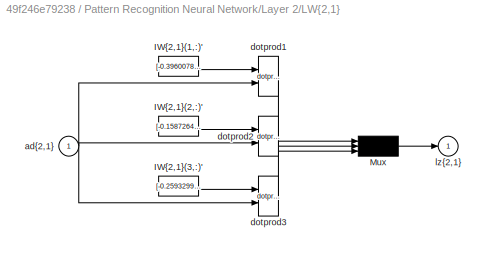
BLOCK [SubSystem] Pattern Recognition Neural Network/Layer 2/LW{2,1}
  Ports = [1, 1]
  RequestExecContextInheritance = off
BLOCK [Constant] Pattern Recognition Neural Network/Layer 2/LW{2,1}/IW{2,1}(1,:)'
  Value = [-0.39600781788832012;0.80103533096718704;0.41301121989245843;1.1771326908066198;-0.72135382694368677;-0.28776648831982082;0.1961289184675187;1.1440764500026632;-0.23525252157370444;-0.6157189814984334;-0.40248389897597353;-0.4661359120182772;-1.1436532688880334;0.36554497438624434;0.35212901502733357;-1.0882332208589625;0.32805995130326643;-0.37938264281970058;-0.14182705379747199;0.2495896995099...<+1646ch>
BLOCK [Constant] Pattern Recognition Neural Network/Layer 2/LW{2,1}/IW{2,1}(2,:)'
  Value = [-0.15872641642325955;0.25485844916090572;-0.13632880124207802;-1.0522862221388374;0.012548262724917304;0.050580761236192887;-0.80496802803384571;0.19867650282491883;-0.91745965435057808;-0.84257241706486619;0.065899167127548175;0.54758998719824958;-0.12769643438691047;-0.20898168594609567;-0.64094433173500898;-0.65626789120602724;0.9378120797035765;0.93741066325888078;-0.1115824055347789;0.365490...<+1649ch>
BLOCK [Constant] Pattern Recognition Neural Network/Layer 2/LW{2,1}/IW{2,1}(3,:)'
  Value = [-0.25932996251483764;-0.45562444180686124;0.082585767141114902;0.83272636912942721;0.59433907990150692;0.55001151242535062;-0.56259714883901957;-0.62797492129839039;-0.25938685852771254;-0.058217758000340167;0.044223075395425242;-0.23477610476758989;0.52283195141505323;0.89505974868488569;-0.20701295215162463;0.66816935702873281;0.098098587269625781;0.029573975414518085;0.88218211179692074;0.3607...<+1650ch>
BLOCK [Mux] Pattern Recognition Neural Network/Layer 2/LW{2,1}/Mux
  Inputs = 3
  Ports = [3, 1]
BLOCK [Inport] Pattern Recognition Neural Network/Layer 2/LW{2,1}/ad{2,1}
  IconDisplay = Port number
  PortDimensions = 100
BLOCK [Reference] Pattern Recognition Neural Network/Layer 2/LW{2,1}/dotprod1  REF=neural/Weight Functions/dotprod
  Ports = [2, 1]
  SourceBlock = neural/Weight Functions/dotprod
  SourceType = DOTPROD
BLOCK [Reference] Pattern Recognition Neural Network/Layer 2/LW{2,1}/dotprod2  REF=neural/Weight Functions/dotprod
  Ports = [2, 1]
  SourceBlock = neural/Weight Functions/dotprod
  SourceType = DOTPROD
BLOCK [Reference] Pattern Recognition Neural Network/Layer 2/LW{2,1}/dotprod3  REF=neural/Weight Functions/dotprod
  Ports = [2, 1]
  SourceBlock = neural/Weight Functions/dotprod
  SourceType = DOTPROD
BLOCK [Outport] Pattern Recognition Neural Network/Layer 2/LW{2,1}/lz{2,1}
  IconDisplay = Port number
BLOCK [Inport] Pattern Recognition Neural Network/Layer 2/a{1} 
  IconDisplay = Port number
  PortDimensions = 100
BLOCK [Outport] Pattern Recognition Neural Network/Layer 2/a{2}
  IconDisplay = Port number
  InitialOutput = [0;0;0]
BLOCK [Constant] Pattern Recognition Neural Network/Layer 2/b{2}
  Value = [0.518162877271517;-0.04106988717268073;-0.22275666138414044]
BLOCK [Sum] Pattern Recognition Neural Network/Layer 2/netsum
  Inputs = 2
  Ports = [2, 1]
BLOCK [Reference] Pattern Recognition Neural Network/Layer 2/softmax  REF=neural/Transfer Functions/softmax
  Ports = [1, 1]
  SourceBlock = neural/Transfer Functions/softmax
  SourceType = SOFTMAX
BLOCK [Outport] Pattern Recognition Neural Network/Output
  IconDisplay = Port number
  InitialOutput = [0;0;0]
BLOCK [SubSystem] Pattern Recognition Neural Network/Process Input 1
  Ports = [1, 1]
  RequestExecContextInheritance = off
BLOCK [Reference] Pattern Recognition Neural Network/Process Input 1/mapminmax  REF=neural/Processing Functions/mapminmax
  Ports = [1, 1]
  SourceBlock = neural/Processing Functions/mapminmax
  SourceType = MAPMINMAX Preprocess
  xmax = [1;1;1;6]
  xmin = [0;0;-1;1]
  ymax = 1
  ymin = -1
BLOCK [Outport] Pattern Recognition Neural Network/Process Input 1/p
  IconDisplay = Port number
  PortDimensions = 4
BLOCK [Inport] Pattern Recognition Neural Network/Process Input 1/x
  IconDisplay = Port number
  PortDimensions = 4
BLOCK [SubSystem] Pattern Recognition Neural Network/Process Output 1
  Ports = [1, 1]
  RequestExecContextInheritance = off
BLOCK [Inport] Pattern Recognition Neural Network/Process Output 1/a
  IconDisplay = Port number
  PortDimensions = 3
BLOCK [Outport] Pattern Recognition Neural Network/Process Output 1/y
  IconDisplay = Port number
  PortDimensions = 3
BLOCK [Goto] Pattern Recognition Neural Network/a{1}
  GotoTag = feedback1
BLOCK [Constant] x1
  SampleTime = 1
  Value = [0;0;1;4]
BLOCK [Scope] y1
  Floating = off
  NumInputPorts = 3
  Ports = [3]
  ShowLegends = off
  YMax = 5~5~5
  YMin = -5~-5~-5
  ZoomMode = yonly
ANNOTATION (root): Pattern
LINE Demux:1 -> y1:1
LINE Demux:2 -> y1:2
LINE Demux:3 -> y1:3
LINE Pattern Recognition Neural Network/ a{1} :1 -> Pattern Recognition Neural Network/Layer 2:1
LINE Pattern Recognition Neural Network/Input:1 -> Pattern Recognition Neural Network/Process Input 1:1
LINE Pattern Recognition Neural Network/Layer 1/Delays 1/mux:1 -> Pattern Recognition Neural Network/Layer 1/Delays 1/pd{1,1}:1
LINE Pattern Recognition Neural Network/Layer 1/Delays 1/p{1}:1 -> Pattern Recognition Neural Network/Layer 1/Delays 1/mux:1
LINE Pattern Recognition Neural Network/Layer 1/Delays 1:1 -> Pattern Recognition Neural Network/Layer 1/IW{1,1}:1
LINE Pattern Recognition Neural Network/Layer 1/IW{1,1}/IW{1,1}(1,:)':1 -> Pattern Recognition Neural Network/Layer 1/IW{1,1}/dotprod1:1
LINE Pattern Recognition Neural Network/Layer 1/IW{1,1}/IW{1,1}(10,:)':1 -> Pattern Recognition Neural Network/Layer 1/IW{1,1}/dotprod10:1
LINE Pattern Recognition Neural Network/Layer 1/IW{1,1}/IW{1,1}(100,:)':1 -> Pattern Recognition Neural Network/Layer 1/IW{1,1}/dotprod100:1
LINE Pattern Recognition Neural Network/Layer 1/IW{1,1}/IW{1,1}(11,:)':1 -> Pattern Recognition Neural Network/Layer 1/IW{1,1}/dotprod11:1
LINE Pattern Recognition Neural Network/Layer 1/IW{1,1}/IW{1,1}(12,:)':1 -> Pattern Recognition Neural Network/Layer 1/IW{1,1}/dotprod12:1
LINE Pattern Recognition Neural Network/Layer 1/IW{1,1}/IW{1,1}(13,:)':1 -> Pattern Recognition Neural Network/Layer 1/IW{1,1}/dotprod13:1
LINE Pattern Recognition Neural Network/Layer 1/IW{1,1}/IW{1,1}(14,:)':1 -> Pattern Recognition Neural Network/Layer 1/IW{1,1}/dotprod14:1
LINE Pattern Recognition Neural Network/Layer 1/IW{1,1}/IW{1,1}(15,:)':1 -> Pattern Recognition Neural Network/Layer 1/IW{1,1}/dotprod15:1
LINE Pattern Recognition Neural Network/Layer 1/IW{1,1}/IW{1,1}(16,:)':1 -> Pattern Recognition Neural Network/Layer 1/IW{1,1}/dotprod16:1
LINE Pattern Recognition Neural Network/Layer 1/IW{1,1}/IW{1,1}(17,:)':1 -> Pattern Recognition Neural Network/Layer 1/IW{1,1}/dotprod17:1
LINE Pattern Recognition Neural Network/Layer 1/IW{1,1}/IW{1,1}(18,:)':1 -> Pattern Recognition Neural Network/Layer 1/IW{1,1}/dotprod18:1
LINE Pattern Recognition Neural Network/Layer 1/IW{1,1}/IW{1,1}(19,:)':1 -> Pattern Recognition Neural Network/Layer 1/IW{1,1}/dotprod19:1
LINE Pattern Recognition Neural Network/Layer 1/IW{1,1}/IW{1,1}(2,:)':1 -> Pattern Recognition Neural Network/Layer 1/IW{1,1}/dotprod2:1
LINE Pattern Recognition Neural Network/Layer 1/IW{1,1}/IW{1,1}(20,:)':1 -> Pattern Recognition Neural Network/Layer 1/IW{1,1}/dotprod20:1
LINE Pattern Recognition Neural Network/Layer 1/IW{1,1}/IW{1,1}(21,:)':1 -> Pattern Recognition Neural Network/Layer 1/IW{1,1}/dotprod21:1
LINE Pattern Recognition Neural Network/Layer 1/IW{1,1}/IW{1,1}(22,:)':1 -> Pattern Recognition Neural Network/Layer 1/IW{1,1}/dotprod22:1
LINE Pattern Recognition Neural Network/Layer 1/IW{1,1}/IW{1,1}(23,:)':1 -> Pattern Recognition Neural Network/Layer 1/IW{1,1}/dotprod23:1
LINE Pattern Recognition Neural Network/Layer 1/IW{1,1}/IW{1,1}(24,:)':1 -> Pattern Recognition Neural Network/Layer 1/IW{1,1}/dotprod24:1
LINE Pattern Recognition Neural Network/Layer 1/IW{1,1}/IW{1,1}(25,:)':1 -> Pattern Recognition Neural Network/Layer 1/IW{1,1}/dotprod25:1
LINE Pattern Recognition Neural Network/Layer 1/IW{1,1}/IW{1,1}(26,:)':1 -> Pattern Recognition Neural Network/Layer 1/IW{1,1}/dotprod26:1
LINE Pattern Recognition Neural Network/Layer 1/IW{1,1}/IW{1,1}(27,:)':1 -> Pattern Recognition Neural Network/Layer 1/IW{1,1}/dotprod27:1
LINE Pattern Recognition Neural Network/Layer 1/IW{1,1}/IW{1,1}(28,:)':1 -> Pattern Recognition Neural Network/Layer 1/IW{1,1}/dotprod28:1
LINE Pattern Recognition Neural Network/Layer 1/IW{1,1}/IW{1,1}(29,:)':1 -> Pattern Recognition Neural Network/Layer 1/IW{1,1}/dotprod29:1
LINE Pattern Recognition Neural Network/Layer 1/IW{1,1}/IW{1,1}(3,:)':1 -> Pattern Recognition Neural Network/Layer 1/IW{1,1}/dotprod3:1
LINE Pattern Recognition Neural Network/Layer 1/IW{1,1}/IW{1,1}(30,:)':1 -> Pattern Recognition Neural Network/Layer 1/IW{1,1}/dotprod30:1
LINE Pattern Recognition Neural Network/Layer 1/IW{1,1}/IW{1,1}(31,:)':1 -> Pattern Recognition Neural Network/Layer 1/IW{1,1}/dotprod31:1
LINE Pattern Recognition Neural Network/Layer 1/IW{1,1}/IW{1,1}(32,:)':1 -> Pattern Recognition Neural Network/Layer 1/IW{1,1}/dotprod32:1
LINE Pattern Recognition Neural Network/Layer 1/IW{1,1}/IW{1,1}(33,:)':1 -> Pattern Recognition Neural Network/Layer 1/IW{1,1}/dotprod33:1
LINE Pattern Recognition Neural Network/Layer 1/IW{1,1}/IW{1,1}(34,:)':1 -> Pattern Recognition Neural Network/Layer 1/IW{1,1}/dotprod34:1
LINE Pattern Recognition Neural Network/Layer 1/IW{1,1}/IW{1,1}(35,:)':1 -> Pattern Recognition Neural Network/Layer 1/IW{1,1}/dotprod35:1
LINE Pattern Recognition Neural Network/Layer 1/IW{1,1}/IW{1,1}(36,:)':1 -> Pattern Recognition Neural Network/Layer 1/IW{1,1}/dotprod36:1
LINE Pattern Recognition Neural Network/Layer 1/IW{1,1}/IW{1,1}(37,:)':1 -> Pattern Recognition Neural Network/Layer 1/IW{1,1}/dotprod37:1
LINE Pattern Recognition Neural Network/Layer 1/IW{1,1}/IW{1,1}(38,:)':1 -> Pattern Recognition Neural Network/Layer 1/IW{1,1}/dotprod38:1
LINE Pattern Recognition Neural Network/Layer 1/IW{1,1}/IW{1,1}(39,:)':1 -> Pattern Recognition Neural Network/Layer 1/IW{1,1}/dotprod39:1
LINE Pattern Recognition Neural Network/Layer 1/IW{1,1}/IW{1,1}(4,:)':1 -> Pattern Recognition Neural Network/Layer 1/IW{1,1}/dotprod4:1
LINE Pattern Recognition Neural Network/Layer 1/IW{1,1}/IW{1,1}(40,:)':1 -> Pattern Recognition Neural Network/Layer 1/IW{1,1}/dotprod40:1
LINE Pattern Recognition Neural Network/Layer 1/IW{1,1}/IW{1,1}(41,:)':1 -> Pattern Recognition Neural Network/Layer 1/IW{1,1}/dotprod41:1
LINE Pattern Recognition Neural Network/Layer 1/IW{1,1}/IW{1,1}(42,:)':1 -> Pattern Recognition Neural Network/Layer 1/IW{1,1}/dotprod42:1
LINE Pattern Recognition Neural Network/Layer 1/IW{1,1}/IW{1,1}(43,:)':1 -> Pattern Recognition Neural Network/Layer 1/IW{1,1}/dotprod43:1
LINE Pattern Recognition Neural Network/Layer 1/IW{1,1}/IW{1,1}(44,:)':1 -> Pattern Recognition Neural Network/Layer 1/IW{1,1}/dotprod44:1
LINE Pattern Recognition Neural Network/Layer 1/IW{1,1}/IW{1,1}(45,:)':1 -> Pattern Recognition Neural Network/Layer 1/IW{1,1}/dotprod45:1
LINE Pattern Recognition Neural Network/Layer 1/IW{1,1}/IW{1,1}(46,:)':1 -> Pattern Recognition Neural Network/Layer 1/IW{1,1}/dotprod46:1
LINE Pattern Recognition Neural Network/Layer 1/IW{1,1}/IW{1,1}(47,:)':1 -> Pattern Recognition Neural Network/Layer 1/IW{1,1}/dotprod47:1
LINE Pattern Recognition Neural Network/Layer 1/IW{1,1}/IW{1,1}(48,:)':1 -> Pattern Recognition Neural Network/Layer 1/IW{1,1}/dotprod48:1
LINE Pattern Recognition Neural Network/Layer 1/IW{1,1}/IW{1,1}(49,:)':1 -> Pattern Recognition Neural Network/Layer 1/IW{1,1}/dotprod49:1
LINE Pattern Recognition Neural Network/Layer 1/IW{1,1}/IW{1,1}(5,:)':1 -> Pattern Recognition Neural Network/Layer 1/IW{1,1}/dotprod5:1
LINE Pattern Recognition Neural Network/Layer 1/IW{1,1}/IW{1,1}(50,:)':1 -> Pattern Recognition Neural Network/Layer 1/IW{1,1}/dotprod50:1
LINE Pattern Recognition Neural Network/Layer 1/IW{1,1}/IW{1,1}(51,:)':1 -> Pattern Recognition Neural Network/Layer 1/IW{1,1}/dotprod51:1
LINE Pattern Recognition Neural Network/Layer 1/IW{1,1}/IW{1,1}(52,:)':1 -> Pattern Recognition Neural Network/Layer 1/IW{1,1}/dotprod52:1
LINE Pattern Recognition Neural Network/Layer 1/IW{1,1}/IW{1,1}(53,:)':1 -> Pattern Recognition Neural Network/Layer 1/IW{1,1}/dotprod53:1
LINE Pattern Recognition Neural Network/Layer 1/IW{1,1}/IW{1,1}(54,:)':1 -> Pattern Recognition Neural Network/Layer 1/IW{1,1}/dotprod54:1
LINE Pattern Recognition Neural Network/Layer 1/IW{1,1}/IW{1,1}(55,:)':1 -> Pattern Recognition Neural Network/Layer 1/IW{1,1}/dotprod55:1
LINE Pattern Recognition Neural Network/Layer 1/IW{1,1}/IW{1,1}(56,:)':1 -> Pattern Recognition Neural Network/Layer 1/IW{1,1}/dotprod56:1
LINE Pattern Recognition Neural Network/Layer 1/IW{1,1}/IW{1,1}(57,:)':1 -> Pattern Recognition Neural Network/Layer 1/IW{1,1}/dotprod57:1
LINE Pattern Recognition Neural Network/Layer 1/IW{1,1}/IW{1,1}(58,:)':1 -> Pattern Recognition Neural Network/Layer 1/IW{1,1}/dotprod58:1
LINE Pattern Recognition Neural Network/Layer 1/IW{1,1}/IW{1,1}(59,:)':1 -> Pattern Recognition Neural Network/Layer 1/IW{1,1}/dotprod59:1
LINE Pattern Recognition Neural Network/Layer 1/IW{1,1}/IW{1,1}(6,:)':1 -> Pattern Recognition Neural Network/Layer 1/IW{1,1}/dotprod6:1
LINE Pattern Recognition Neural Network/Layer 1/IW{1,1}/IW{1,1}(60,:)':1 -> Pattern Recognition Neural Network/Layer 1/IW{1,1}/dotprod60:1
LINE Pattern Recognition Neural Network/Layer 1/IW{1,1}/IW{1,1}(61,:)':1 -> Pattern Recognition Neural Network/Layer 1/IW{1,1}/dotprod61:1
LINE Pattern Recognition Neural Network/Layer 1/IW{1,1}/IW{1,1}(62,:)':1 -> Pattern Recognition Neural Network/Layer 1/IW{1,1}/dotprod62:1
LINE Pattern Recognition Neural Network/Layer 1/IW{1,1}/IW{1,1}(63,:)':1 -> Pattern Recognition Neural Network/Layer 1/IW{1,1}/dotprod63:1
LINE Pattern Recognition Neural Network/Layer 1/IW{1,1}/IW{1,1}(64,:)':1 -> Pattern Recognition Neural Network/Layer 1/IW{1,1}/dotprod64:1
LINE Pattern Recognition Neural Network/Layer 1/IW{1,1}/IW{1,1}(65,:)':1 -> Pattern Recognition Neural Network/Layer 1/IW{1,1}/dotprod65:1
LINE Pattern Recognition Neural Network/Layer 1/IW{1,1}/IW{1,1}(66,:)':1 -> Pattern Recognition Neural Network/Layer 1/IW{1,1}/dotprod66:1
LINE Pattern Recognition Neural Network/Layer 1/IW{1,1}/IW{1,1}(67,:)':1 -> Pattern Recognition Neural Network/Layer 1/IW{1,1}/dotprod67:1
LINE Pattern Recognition Neural Network/Layer 1/IW{1,1}/IW{1,1}(68,:)':1 -> Pattern Recognition Neural Network/Layer 1/IW{1,1}/dotprod68:1
LINE Pattern Recognition Neural Network/Layer 1/IW{1,1}/IW{1,1}(69,:)':1 -> Pattern Recognition Neural Network/Layer 1/IW{1,1}/dotprod69:1
LINE Pattern Recognition Neural Network/Layer 1/IW{1,1}/IW{1,1}(7,:)':1 -> Pattern Recognition Neural Network/Layer 1/IW{1,1}/dotprod7:1
LINE Pattern Recognition Neural Network/Layer 1/IW{1,1}/IW{1,1}(70,:)':1 -> Pattern Recognition Neural Network/Layer 1/IW{1,1}/dotprod70:1
LINE Pattern Recognition Neural Network/Layer 1/IW{1,1}/IW{1,1}(71,:)':1 -> Pattern Recognition Neural Network/Layer 1/IW{1,1}/dotprod71:1
LINE Pattern Recognition Neural Network/Layer 1/IW{1,1}/IW{1,1}(72,:)':1 -> Pattern Recognition Neural Network/Layer 1/IW{1,1}/dotprod72:1
LINE Pattern Recognition Neural Network/Layer 1/IW{1,1}/IW{1,1}(73,:)':1 -> Pattern Recognition Neural Network/Layer 1/IW{1,1}/dotprod73:1
LINE Pattern Recognition Neural Network/Layer 1/IW{1,1}/IW{1,1}(74,:)':1 -> Pattern Recognition Neural Network/Layer 1/IW{1,1}/dotprod74:1
LINE Pattern Recognition Neural Network/Layer 1/IW{1,1}/IW{1,1}(75,:)':1 -> Pattern Recognition Neural Network/Layer 1/IW{1,1}/dotprod75:1
LINE Pattern Recognition Neural Network/Layer 1/IW{1,1}/IW{1,1}(76,:)':1 -> Pattern Recognition Neural Network/Layer 1/IW{1,1}/dotprod76:1
LINE Pattern Recognition Neural Network/Layer 1/IW{1,1}/IW{1,1}(77,:)':1 -> Pattern Recognition Neural Network/Layer 1/IW{1,1}/dotprod77:1
LINE Pattern Recognition Neural Network/Layer 1/IW{1,1}/IW{1,1}(78,:)':1 -> Pattern Recognition Neural Network/Layer 1/IW{1,1}/dotprod78:1
LINE Pattern Recognition Neural Network/Layer 1/IW{1,1}/IW{1,1}(79,:)':1 -> Pattern Recognition Neural Network/Layer 1/IW{1,1}/dotprod79:1
LINE Pattern Recognition Neural Network/Layer 1/IW{1,1}/IW{1,1}(8,:)':1 -> Pattern Recognition Neural Network/Layer 1/IW{1,1}/dotprod8:1
LINE Pattern Recognition Neural Network/Layer 1/IW{1,1}/IW{1,1}(80,:)':1 -> Pattern Recognition Neural Network/Layer 1/IW{1,1}/dotprod80:1
LINE Pattern Recognition Neural Network/Layer 1/IW{1,1}/IW{1,1}(81,:)':1 -> Pattern Recognition Neural Network/Layer 1/IW{1,1}/dotprod81:1
LINE Pattern Recognition Neural Network/Layer 1/IW{1,1}/IW{1,1}(82,:)':1 -> Pattern Recognition Neural Network/Layer 1/IW{1,1}/dotprod82:1
LINE Pattern Recognition Neural Network/Layer 1/IW{1,1}/IW{1,1}(83,:)':1 -> Pattern Recognition Neural Network/Layer 1/IW{1,1}/dotprod83:1
LINE Pattern Recognition Neural Network/Layer 1/IW{1,1}/IW{1,1}(84,:)':1 -> Pattern Recognition Neural Network/Layer 1/IW{1,1}/dotprod84:1
LINE Pattern Recognition Neural Network/Layer 1/IW{1,1}/IW{1,1}(85,:)':1 -> Pattern Recognition Neural Network/Layer 1/IW{1,1}/dotprod85:1
LINE Pattern Recognition Neural Network/Layer 1/IW{1,1}/IW{1,1}(86,:)':1 -> Pattern Recognition Neural Network/Layer 1/IW{1,1}/dotprod86:1
LINE Pattern Recognition Neural Network/Layer 1/IW{1,1}/IW{1,1}(87,:)':1 -> Pattern Recognition Neural Network/Layer 1/IW{1,1}/dotprod87:1
LINE Pattern Recognition Neural Network/Layer 1/IW{1,1}/IW{1,1}(88,:)':1 -> Pattern Recognition Neural Network/Layer 1/IW{1,1}/dotprod88:1
LINE Pattern Recognition Neural Network/Layer 1/IW{1,1}/IW{1,1}(89,:)':1 -> Pattern Recognition Neural Network/Layer 1/IW{1,1}/dotprod89:1
LINE Pattern Recognition Neural Network/Layer 1/IW{1,1}/IW{1,1}(9,:)':1 -> Pattern Recognition Neural Network/Layer 1/IW{1,1}/dotprod9:1
LINE Pattern Recognition Neural Network/Layer 1/IW{1,1}/IW{1,1}(90,:)':1 -> Pattern Recognition Neural Network/Layer 1/IW{1,1}/dotprod90:1
LINE Pattern Recognition Neural Network/Layer 1/IW{1,1}/IW{1,1}(91,:)':1 -> Pattern Recognition Neural Network/Layer 1/IW{1,1}/dotprod91:1
LINE Pattern Recognition Neural Network/Layer 1/IW{1,1}/IW{1,1}(92,:)':1 -> Pattern Recognition Neural Network/Layer 1/IW{1,1}/dotprod92:1
LINE Pattern Recognition Neural Network/Layer 1/IW{1,1}/IW{1,1}(93,:)':1 -> Pattern Recognition Neural Network/Layer 1/IW{1,1}/dotprod93:1
LINE Pattern Recognition Neural Network/Layer 1/IW{1,1}/IW{1,1}(94,:)':1 -> Pattern Recognition Neural Network/Layer 1/IW{1,1}/dotprod94:1
LINE Pattern Recognition Neural Network/Layer 1/IW{1,1}/IW{1,1}(95,:)':1 -> Pattern Recognition Neural Network/Layer 1/IW{1,1}/dotprod95:1
LINE Pattern Recognition Neural Network/Layer 1/IW{1,1}/IW{1,1}(96,:)':1 -> Pattern Recognition Neural Network/Layer 1/IW{1,1}/dotprod96:1
LINE Pattern Recognition Neural Network/Layer 1/IW{1,1}/IW{1,1}(97,:)':1 -> Pattern Recognition Neural Network/Layer 1/IW{1,1}/dotprod97:1
LINE Pattern Recognition Neural Network/Layer 1/IW{1,1}/IW{1,1}(98,:)':1 -> Pattern Recognition Neural Network/Layer 1/IW{1,1}/dotprod98:1
LINE Pattern Recognition Neural Network/Layer 1/IW{1,1}/IW{1,1}(99,:)':1 -> Pattern Recognition Neural Network/Layer 1/IW{1,1}/dotprod99:1
LINE Pattern Recognition Neural Network/Layer 1/IW{1,1}/Mux:1 -> Pattern Recognition Neural Network/Layer 1/IW{1,1}/iz{1,1}:1
LINE Pattern Recognition Neural Network/Layer 1/IW{1,1}/dotprod100:1 -> Pattern Recognition Neural Network/Layer 1/IW{1,1}/Mux:100
LINE Pattern Recognition Neural Network/Layer 1/IW{1,1}/dotprod10:1 -> Pattern Recognition Neural Network/Layer 1/IW{1,1}/Mux:10
LINE Pattern Recognition Neural Network/Layer 1/IW{1,1}/dotprod11:1 -> Pattern Recognition Neural Network/Layer 1/IW{1,1}/Mux:11
LINE Pattern Recognition Neural Network/Layer 1/IW{1,1}/dotprod12:1 -> Pattern Recognition Neural Network/Layer 1/IW{1,1}/Mux:12
LINE Pattern Recognition Neural Network/Layer 1/IW{1,1}/dotprod13:1 -> Pattern Recognition Neural Network/Layer 1/IW{1,1}/Mux:13
LINE Pattern Recognition Neural Network/Layer 1/IW{1,1}/dotprod14:1 -> Pattern Recognition Neural Network/Layer 1/IW{1,1}/Mux:14
LINE Pattern Recognition Neural Network/Layer 1/IW{1,1}/dotprod15:1 -> Pattern Recognition Neural Network/Layer 1/IW{1,1}/Mux:15
LINE Pattern Recognition Neural Network/Layer 1/IW{1,1}/dotprod16:1 -> Pattern Recognition Neural Network/Layer 1/IW{1,1}/Mux:16
LINE Pattern Recognition Neural Network/Layer 1/IW{1,1}/dotprod17:1 -> Pattern Recognition Neural Network/Layer 1/IW{1,1}/Mux:17
LINE Pattern Recognition Neural Network/Layer 1/IW{1,1}/dotprod18:1 -> Pattern Recognition Neural Network/Layer 1/IW{1,1}/Mux:18
LINE Pattern Recognition Neural Network/Layer 1/IW{1,1}/dotprod19:1 -> Pattern Recognition Neural Network/Layer 1/IW{1,1}/Mux:19
LINE Pattern Recognition Neural Network/Layer 1/IW{1,1}/dotprod1:1 -> Pattern Recognition Neural Network/Layer 1/IW{1,1}/Mux:1
LINE Pattern Recognition Neural Network/Layer 1/IW{1,1}/dotprod20:1 -> Pattern Recognition Neural Network/Layer 1/IW{1,1}/Mux:20
LINE Pattern Recognition Neural Network/Layer 1/IW{1,1}/dotprod21:1 -> Pattern Recognition Neural Network/Layer 1/IW{1,1}/Mux:21
LINE Pattern Recognition Neural Network/Layer 1/IW{1,1}/dotprod22:1 -> Pattern Recognition Neural Network/Layer 1/IW{1,1}/Mux:22
LINE Pattern Recognition Neural Network/Layer 1/IW{1,1}/dotprod23:1 -> Pattern Recognition Neural Network/Layer 1/IW{1,1}/Mux:23
LINE Pattern Recognition Neural Network/Layer 1/IW{1,1}/dotprod24:1 -> Pattern Recognition Neural Network/Layer 1/IW{1,1}/Mux:24
LINE Pattern Recognition Neural Network/Layer 1/IW{1,1}/dotprod25:1 -> Pattern Recognition Neural Network/Layer 1/IW{1,1}/Mux:25
LINE Pattern Recognition Neural Network/Layer 1/IW{1,1}/dotprod26:1 -> Pattern Recognition Neural Network/Layer 1/IW{1,1}/Mux:26
LINE Pattern Recognition Neural Network/Layer 1/IW{1,1}/dotprod27:1 -> Pattern Recognition Neural Network/Layer 1/IW{1,1}/Mux:27
LINE Pattern Recognition Neural Network/Layer 1/IW{1,1}/dotprod28:1 -> Pattern Recognition Neural Network/Layer 1/IW{1,1}/Mux:28
LINE Pattern Recognition Neural Network/Layer 1/IW{1,1}/dotprod29:1 -> Pattern Recognition Neural Network/Layer 1/IW{1,1}/Mux:29
LINE Pattern Recognition Neural Network/Layer 1/IW{1,1}/dotprod2:1 -> Pattern Recognition Neural Network/Layer 1/IW{1,1}/Mux:2
LINE Pattern Recognition Neural Network/Layer 1/IW{1,1}/dotprod30:1 -> Pattern Recognition Neural Network/Layer 1/IW{1,1}/Mux:30
LINE Pattern Recognition Neural Network/Layer 1/IW{1,1}/dotprod31:1 -> Pattern Recognition Neural Network/Layer 1/IW{1,1}/Mux:31
LINE Pattern Recognition Neural Network/Layer 1/IW{1,1}/dotprod32:1 -> Pattern Recognition Neural Network/Layer 1/IW{1,1}/Mux:32
LINE Pattern Recognition Neural Network/Layer 1/IW{1,1}/dotprod33:1 -> Pattern Recognition Neural Network/Layer 1/IW{1,1}/Mux:33
LINE Pattern Recognition Neural Network/Layer 1/IW{1,1}/dotprod34:1 -> Pattern Recognition Neural Network/Layer 1/IW{1,1}/Mux:34
LINE Pattern Recognition Neural Network/Layer 1/IW{1,1}/dotprod35:1 -> Pattern Recognition Neural Network/Layer 1/IW{1,1}/Mux:35
LINE Pattern Recognition Neural Network/Layer 1/IW{1,1}/dotprod36:1 -> Pattern Recognition Neural Network/Layer 1/IW{1,1}/Mux:36
LINE Pattern Recognition Neural Network/Layer 1/IW{1,1}/dotprod37:1 -> Pattern Recognition Neural Network/Layer 1/IW{1,1}/Mux:37
LINE Pattern Recognition Neural Network/Layer 1/IW{1,1}/dotprod38:1 -> Pattern Recognition Neural Network/Layer 1/IW{1,1}/Mux:38
LINE Pattern Recognition Neural Network/Layer 1/IW{1,1}/dotprod39:1 -> Pattern Recognition Neural Network/Layer 1/IW{1,1}/Mux:39
LINE Pattern Recognition Neural Network/Layer 1/IW{1,1}/dotprod3:1 -> Pattern Recognition Neural Network/Layer 1/IW{1,1}/Mux:3
LINE Pattern Recognition Neural Network/Layer 1/IW{1,1}/dotprod40:1 -> Pattern Recognition Neural Network/Layer 1/IW{1,1}/Mux:40
LINE Pattern Recognition Neural Network/Layer 1/IW{1,1}/dotprod41:1 -> Pattern Recognition Neural Network/Layer 1/IW{1,1}/Mux:41
LINE Pattern Recognition Neural Network/Layer 1/IW{1,1}/dotprod42:1 -> Pattern Recognition Neural Network/Layer 1/IW{1,1}/Mux:42
LINE Pattern Recognition Neural Network/Layer 1/IW{1,1}/dotprod43:1 -> Pattern Recognition Neural Network/Layer 1/IW{1,1}/Mux:43
LINE Pattern Recognition Neural Network/Layer 1/IW{1,1}/dotprod44:1 -> Pattern Recognition Neural Network/Layer 1/IW{1,1}/Mux:44
LINE Pattern Recognition Neural Network/Layer 1/IW{1,1}/dotprod45:1 -> Pattern Recognition Neural Network/Layer 1/IW{1,1}/Mux:45
LINE Pattern Recognition Neural Network/Layer 1/IW{1,1}/dotprod46:1 -> Pattern Recognition Neural Network/Layer 1/IW{1,1}/Mux:46
LINE Pattern Recognition Neural Network/Layer 1/IW{1,1}/dotprod47:1 -> Pattern Recognition Neural Network/Layer 1/IW{1,1}/Mux:47
LINE Pattern Recognition Neural Network/Layer 1/IW{1,1}/dotprod48:1 -> Pattern Recognition Neural Network/Layer 1/IW{1,1}/Mux:48
LINE Pattern Recognition Neural Network/Layer 1/IW{1,1}/dotprod49:1 -> Pattern Recognition Neural Network/Layer 1/IW{1,1}/Mux:49
LINE Pattern Recognition Neural Network/Layer 1/IW{1,1}/dotprod4:1 -> Pattern Recognition Neural Network/Layer 1/IW{1,1}/Mux:4
LINE Pattern Recognition Neural Network/Layer 1/IW{1,1}/dotprod50:1 -> Pattern Recognition Neural Network/Layer 1/IW{1,1}/Mux:50
LINE Pattern Recognition Neural Network/Layer 1/IW{1,1}/dotprod51:1 -> Pattern Recognition Neural Network/Layer 1/IW{1,1}/Mux:51
LINE Pattern Recognition Neural Network/Layer 1/IW{1,1}/dotprod52:1 -> Pattern Recognition Neural Network/Layer 1/IW{1,1}/Mux:52
LINE Pattern Recognition Neural Network/Layer 1/IW{1,1}/dotprod53:1 -> Pattern Recognition Neural Network/Layer 1/IW{1,1}/Mux:53
LINE Pattern Recognition Neural Network/Layer 1/IW{1,1}/dotprod54:1 -> Pattern Recognition Neural Network/Layer 1/IW{1,1}/Mux:54
LINE Pattern Recognition Neural Network/Layer 1/IW{1,1}/dotprod55:1 -> Pattern Recognition Neural Network/Layer 1/IW{1,1}/Mux:55
LINE Pattern Recognition Neural Network/Layer 1/IW{1,1}/dotprod56:1 -> Pattern Recognition Neural Network/Layer 1/IW{1,1}/Mux:56
LINE Pattern Recognition Neural Network/Layer 1/IW{1,1}/dotprod57:1 -> Pattern Recognition Neural Network/Layer 1/IW{1,1}/Mux:57
LINE Pattern Recognition Neural Network/Layer 1/IW{1,1}/dotprod58:1 -> Pattern Recognition Neural Network/Layer 1/IW{1,1}/Mux:58
LINE Pattern Recognition Neural Network/Layer 1/IW{1,1}/dotprod59:1 -> Pattern Recognition Neural Network/Layer 1/IW{1,1}/Mux:59
LINE Pattern Recognition Neural Network/Layer 1/IW{1,1}/dotprod5:1 -> Pattern Recognition Neural Network/Layer 1/IW{1,1}/Mux:5
LINE Pattern Recognition Neural Network/Layer 1/IW{1,1}/dotprod60:1 -> Pattern Recognition Neural Network/Layer 1/IW{1,1}/Mux:60
LINE Pattern Recognition Neural Network/Layer 1/IW{1,1}/dotprod61:1 -> Pattern Recognition Neural Network/Layer 1/IW{1,1}/Mux:61
LINE Pattern Recognition Neural Network/Layer 1/IW{1,1}/dotprod62:1 -> Pattern Recognition Neural Network/Layer 1/IW{1,1}/Mux:62
LINE Pattern Recognition Neural Network/Layer 1/IW{1,1}/dotprod63:1 -> Pattern Recognition Neural Network/Layer 1/IW{1,1}/Mux:63
LINE Pattern Recognition Neural Network/Layer 1/IW{1,1}/dotprod64:1 -> Pattern Recognition Neural Network/Layer 1/IW{1,1}/Mux:64
LINE Pattern Recognition Neural Network/Layer 1/IW{1,1}/dotprod65:1 -> Pattern Recognition Neural Network/Layer 1/IW{1,1}/Mux:65
LINE Pattern Recognition Neural Network/Layer 1/IW{1,1}/dotprod66:1 -> Pattern Recognition Neural Network/Layer 1/IW{1,1}/Mux:66
LINE Pattern Recognition Neural Network/Layer 1/IW{1,1}/dotprod67:1 -> Pattern Recognition Neural Network/Layer 1/IW{1,1}/Mux:67
LINE Pattern Recognition Neural Network/Layer 1/IW{1,1}/dotprod68:1 -> Pattern Recognition Neural Network/Layer 1/IW{1,1}/Mux:68
LINE Pattern Recognition Neural Network/Layer 1/IW{1,1}/dotprod69:1 -> Pattern Recognition Neural Network/Layer 1/IW{1,1}/Mux:69
LINE Pattern Recognition Neural Network/Layer 1/IW{1,1}/dotprod6:1 -> Pattern Recognition Neural Network/Layer 1/IW{1,1}/Mux:6
LINE Pattern Recognition Neural Network/Layer 1/IW{1,1}/dotprod70:1 -> Pattern Recognition Neural Network/Layer 1/IW{1,1}/Mux:70
LINE Pattern Recognition Neural Network/Layer 1/IW{1,1}/dotprod71:1 -> Pattern Recognition Neural Network/Layer 1/IW{1,1}/Mux:71
LINE Pattern Recognition Neural Network/Layer 1/IW{1,1}/dotprod72:1 -> Pattern Recognition Neural Network/Layer 1/IW{1,1}/Mux:72
LINE Pattern Recognition Neural Network/Layer 1/IW{1,1}/dotprod73:1 -> Pattern Recognition Neural Network/Layer 1/IW{1,1}/Mux:73
LINE Pattern Recognition Neural Network/Layer 1/IW{1,1}/dotprod74:1 -> Pattern Recognition Neural Network/Layer 1/IW{1,1}/Mux:74
LINE Pattern Recognition Neural Network/Layer 1/IW{1,1}/dotprod75:1 -> Pattern Recognition Neural Network/Layer 1/IW{1,1}/Mux:75
LINE Pattern Recognition Neural Network/Layer 1/IW{1,1}/dotprod76:1 -> Pattern Recognition Neural Network/Layer 1/IW{1,1}/Mux:76
LINE Pattern Recognition Neural Network/Layer 1/IW{1,1}/dotprod77:1 -> Pattern Recognition Neural Network/Layer 1/IW{1,1}/Mux:77
LINE Pattern Recognition Neural Network/Layer 1/IW{1,1}/dotprod78:1 -> Pattern Recognition Neural Network/Layer 1/IW{1,1}/Mux:78
LINE Pattern Recognition Neural Network/Layer 1/IW{1,1}/dotprod79:1 -> Pattern Recognition Neural Network/Layer 1/IW{1,1}/Mux:79
LINE Pattern Recognition Neural Network/Layer 1/IW{1,1}/dotprod7:1 -> Pattern Recognition Neural Network/Layer 1/IW{1,1}/Mux:7
LINE Pattern Recognition Neural Network/Layer 1/IW{1,1}/dotprod80:1 -> Pattern Recognition Neural Network/Layer 1/IW{1,1}/Mux:80
LINE Pattern Recognition Neural Network/Layer 1/IW{1,1}/dotprod81:1 -> Pattern Recognition Neural Network/Layer 1/IW{1,1}/Mux:81
LINE Pattern Recognition Neural Network/Layer 1/IW{1,1}/dotprod82:1 -> Pattern Recognition Neural Network/Layer 1/IW{1,1}/Mux:82
LINE Pattern Recognition Neural Network/Layer 1/IW{1,1}/dotprod83:1 -> Pattern Recognition Neural Network/Layer 1/IW{1,1}/Mux:83
LINE Pattern Recognition Neural Network/Layer 1/IW{1,1}/dotprod84:1 -> Pattern Recognition Neural Network/Layer 1/IW{1,1}/Mux:84
LINE Pattern Recognition Neural Network/Layer 1/IW{1,1}/dotprod85:1 -> Pattern Recognition Neural Network/Layer 1/IW{1,1}/Mux:85
LINE Pattern Recognition Neural Network/Layer 1/IW{1,1}/dotprod86:1 -> Pattern Recognition Neural Network/Layer 1/IW{1,1}/Mux:86
LINE Pattern Recognition Neural Network/Layer 1/IW{1,1}/dotprod87:1 -> Pattern Recognition Neural Network/Layer 1/IW{1,1}/Mux:87
LINE Pattern Recognition Neural Network/Layer 1/IW{1,1}/dotprod88:1 -> Pattern Recognition Neural Network/Layer 1/IW{1,1}/Mux:88
LINE Pattern Recognition Neural Network/Layer 1/IW{1,1}/dotprod89:1 -> Pattern Recognition Neural Network/Layer 1/IW{1,1}/Mux:89
LINE Pattern Recognition Neural Network/Layer 1/IW{1,1}/dotprod8:1 -> Pattern Recognition Neural Network/Layer 1/IW{1,1}/Mux:8
LINE Pattern Recognition Neural Network/Layer 1/IW{1,1}/dotprod90:1 -> Pattern Recognition Neural Network/Layer 1/IW{1,1}/Mux:90
LINE Pattern Recognition Neural Network/Layer 1/IW{1,1}/dotprod91:1 -> Pattern Recognition Neural Network/Layer 1/IW{1,1}/Mux:91
LINE Pattern Recognition Neural Network/Layer 1/IW{1,1}/dotprod92:1 -> Pattern Recognition Neural Network/Layer 1/IW{1,1}/Mux:92
LINE Pattern Recognition Neural Network/Layer 1/IW{1,1}/dotprod93:1 -> Pattern Recognition Neural Network/Layer 1/IW{1,1}/Mux:93
LINE Pattern Recognition Neural Network/Layer 1/IW{1,1}/dotprod94:1 -> Pattern Recognition Neural Network/Layer 1/IW{1,1}/Mux:94
LINE Pattern Recognition Neural Network/Layer 1/IW{1,1}/dotprod95:1 -> Pattern Recognition Neural Network/Layer 1/IW{1,1}/Mux:95
LINE Pattern Recognition Neural Network/Layer 1/IW{1,1}/dotprod96:1 -> Pattern Recognition Neural Network/Layer 1/IW{1,1}/Mux:96
LINE Pattern Recognition Neural Network/Layer 1/IW{1,1}/dotprod97:1 -> Pattern Recognition Neural Network/Layer 1/IW{1,1}/Mux:97
LINE Pattern Recognition Neural Network/Layer 1/IW{1,1}/dotprod98:1 -> Pattern Recognition Neural Network/Layer 1/IW{1,1}/Mux:98
LINE Pattern Recognition Neural Network/Layer 1/IW{1,1}/dotprod99:1 -> Pattern Recognition Neural Network/Layer 1/IW{1,1}/Mux:99
LINE Pattern Recognition Neural Network/Layer 1/IW{1,1}/dotprod9:1 -> Pattern Recognition Neural Network/Layer 1/IW{1,1}/Mux:9
NET Pattern Recognition Neural Network/Layer 1/IW{1,1}/pd{1,1}:1 -> Pattern Recognition Neural Network/Layer 1/IW{1,1}/dotprod100:2, Pattern Recognition Neural Network/Layer 1/IW{1,1}/dotprod10:2, Pattern Recognition Neural Network/Layer 1/IW{1,1}/dotprod11:2, Pattern Recognition Neural Network/Layer 1/IW{1,1}/dotprod12:2, Pattern Recognition Neural Network/Layer 1/IW{1,1}/dotprod13:2, Pattern Recognition Neural Network/Layer 1/IW{1,1}/dotprod14:2, Pattern Recognition Neural Network/Layer 1/IW{1,1}/dotprod15:2, Pattern Recognition Neural Network/Layer 1/IW{1,1}/dotprod16:2, Pattern Recognition Neural Network/Layer 1/IW{1,1}/dotprod17:2, Pattern Recognition Neural Network/Layer 1/IW{1,1}/dotprod18:2, Pattern Recognition Neural Network/Layer 1/IW{1,1}/dotprod19:2, Pattern Recognition Neural Network/Layer 1/IW{1,1}/dotprod1:2, Pattern Recognition Neural Network/Layer 1/IW{1,1}/dotprod20:2, Pattern Recognition Neural Network/Layer 1/IW{1,1}/dotprod21:2, Pattern Recognition Neural Network/Layer 1/IW{1,1}/dotprod22:2, Pattern Recognition Neural Network/Layer 1/IW{1,1}/dotprod23:2, Pattern Recognition Neural Network/Layer 1/IW{1,1}/dotprod24:2, Pattern Recognition Neural Network/Layer 1/IW{1,1}/dotprod25:2, Pattern Recognition Neural Network/Layer 1/IW{1,1}/dotprod26:2, Pattern Recognition Neural Network/Layer 1/IW{1,1}/dotprod27:2, Pattern Recognition Neural Network/Layer 1/IW{1,1}/dotprod28:2, Pattern Recognition Neural Network/Layer 1/IW{1,1}/dotprod29:2, Pattern Recognition Neural Network/Layer 1/IW{1,1}/dotprod2:2, Pattern Recognition Neural Network/Layer 1/IW{1,1}/dotprod30:2, Pattern Recognition Neural Network/Layer 1/IW{1,1}/dotprod31:2, Pattern Recognition Neural Network/Layer 1/IW{1,1}/dotprod32:2, Pattern Recognition Neural Network/Layer 1/IW{1,1}/dotprod33:2, Pattern Recognition Neural Network/Layer 1/IW{1,1}/dotprod34:2, Pattern Recognition Neural Network/Layer 1/IW{1,1}/dotprod35:2, Pattern Recognition Neural Network/Layer 1/IW{1,1}/dotprod36:2, Pattern Recognition Neural Network/Layer 1/IW{1,1}/dotprod37:2, Pattern Recognition Neural Network/Layer 1/IW{1,1}/dotprod38:2, Pattern Recognition Neural Network/Layer 1/IW{1,1}/dotprod39:2, Pattern Recognition Neural Network/Layer 1/IW{1,1}/dotprod3:2, Pattern Recognition Neural Network/Layer 1/IW{1,1}/dotprod40:2, Pattern Recognition Neural Network/Layer 1/IW{1,1}/dotprod41:2, Pattern Recognition Neural Network/Layer 1/IW{1,1}/dotprod42:2, Pattern Recognition Neural Network/Layer 1/IW{1,1}/dotprod43:2, Pattern Recognition Neural Network/Layer 1/IW{1,1}/dotprod44:2, Pattern Recognition Neural Network/Layer 1/IW{1,1}/dotprod45:2, Pattern Recognition Neural Network/Layer 1/IW{1,1}/dotprod46:2, Pattern Recognition Neural Network/Layer 1/IW{1,1}/dotprod47:2, Pattern Recognition Neural Network/Layer 1/IW{1,1}/dotprod48:2, Pattern Recognition Neural Network/Layer 1/IW{1,1}/dotprod49:2, Pattern Recognition Neural Network/Layer 1/IW{1,1}/dotprod4:2, Pattern Recognition Neural Network/Layer 1/IW{1,1}/dotprod50:2, Pattern Recognition Neural Network/Layer 1/IW{1,1}/dotprod51:2, Pattern Recognition Neural Network/Layer 1/IW{1,1}/dotprod52:2, Pattern Recognition Neural Network/Layer 1/IW{1,1}/dotprod53:2, Pattern Recognition Neural Network/Layer 1/IW{1,1}/dotprod54:2, Pattern Recognition Neural Network/Layer 1/IW{1,1}/dotprod55:2, Pattern Recognition Neural Network/Layer 1/IW{1,1}/dotprod56:2, Pattern Recognition Neural Network/Layer 1/IW{1,1}/dotprod57:2, Pattern Recognition Neural Network/Layer 1/IW{1,1}/dotprod58:2, Pattern Recognition Neural Network/Layer 1/IW{1,1}/dotprod59:2, Pattern Recognition Neural Network/Layer 1/IW{1,1}/dotprod5:2, Pattern Recognition Neural Network/Layer 1/IW{1,1}/dotprod60:2, Pattern Recognition Neural Network/Layer 1/IW{1,1}/dotprod61:2, Pattern Recognition Neural Network/Layer 1/IW{1,1}/dotprod62:2, Pattern Recognition Neural Network/Layer 1/IW{1,1}/dotprod63:2, Pattern Recognition Neural Network/Layer 1/IW{1,1}/dotprod64:2, Pattern Recognition Neural Network/Layer 1/IW{1,1}/dotprod65:2, Pattern Recognition Neural Network/Layer 1/IW{1,1}/dotprod66:2, Pattern Recognition Neural Network/Layer 1/IW{1,1}/dotprod67:2, Pattern Recognition Neural Network/Layer 1/IW{1,1}/dotprod68:2, Pattern Recognition Neural Network/Layer 1/IW{1,1}/dotprod69:2, Pattern Recognition Neural Network/Layer 1/IW{1,1}/dotprod6:2, Pattern Recognition Neural Network/Layer 1/IW{1,1}/dotprod70:2, Pattern Recognition Neural Network/Layer 1/IW{1,1}/dotprod71:2, Pattern Recognition Neural Network/Layer 1/IW{1,1}/dotprod72:2, Pattern Recognition Neural Network/Layer 1/IW{1,1}/dotprod73:2, Pattern Recognition Neural Network/Layer 1/IW{1,1}/dotprod74:2, Pattern Recognition Neural Network/Layer 1/IW{1,1}/dotprod75:2, Pattern Recognition Neural Network/Layer 1/IW{1,1}/dotprod76:2, Pattern Recognition Neural Network/Layer 1/IW{1,1}/dotprod77:2, Pattern Recognition Neural Network/Layer 1/IW{1,1}/dotprod78:2, Pattern Recognition Neural Network/Layer 1/IW{1,1}/dotprod79:2, Pattern Recognition Neural Network/Layer 1/IW{1,1}/dotprod7:2, Pattern Recognition Neural Network/Layer 1/IW{1,1}/dotprod80:2, Pattern Recognition Neural Network/Layer 1/IW{1,1}/dotprod81:2, Pattern Recognition Neural Network/Layer 1/IW{1,1}/dotprod82:2, Pattern Recognition Neural Network/Layer 1/IW{1,1}/dotprod83:2, Pattern Recognition Neural Network/Layer 1/IW{1,1}/dotprod84:2, Pattern Recognition Neural Network/Layer 1/IW{1,1}/dotprod85:2, Pattern Recognition Neural Network/Layer 1/IW{1,1}/dotprod86:2, Pattern Recognition Neural Network/Layer 1/IW{1,1}/dotprod87:2, Pattern Recognition Neural Network/Layer 1/IW{1,1}/dotprod88:2, Pattern Recognition Neural Network/Layer 1/IW{1,1}/dotprod89:2, Pattern Recognition Neural Network/Layer 1/IW{1,1}/dotprod8:2, Pattern Recognition Neural Network/Layer 1/IW{1,1}/dotprod90:2, Pattern Recognition Neural Network/Layer 1/IW{1,1}/dotprod91:2, Pattern Recognition Neural Network/Layer 1/IW{1,1}/dotprod92:2, Pattern Recognition Neural Network/Layer 1/IW{1,1}/dotprod93:2, Pattern Recognition Neural Network/Layer 1/IW{1,1}/dotprod94:2, Pattern Recognition Neural Network/Layer 1/IW{1,1}/dotprod95:2, Pattern Recognition Neural Network/Layer 1/IW{1,1}/dotprod96:2, Pattern Recognition Neural Network/Layer 1/IW{1,1}/dotprod97:2, Pattern Recognition Neural Network/Layer 1/IW{1,1}/dotprod98:2, Pattern Recognition Neural Network/Layer 1/IW{1,1}/dotprod99:2, Pattern Recognition Neural Network/Layer 1/IW{1,1}/dotprod9:2
LINE Pattern Recognition Neural Network/Layer 1/IW{1,1}:1 -> Pattern Recognition Neural Network/Layer 1/netsum:1
LINE Pattern Recognition Neural Network/Layer 1/b{1}:1 -> Pattern Recognition Neural Network/Layer 1/netsum:2
LINE Pattern Recognition Neural Network/Layer 1/netsum:1 -> Pattern Recognition Neural Network/Layer 1/tansig:1
LINE Pattern Recognition Neural Network/Layer 1/p{1}:1 -> Pattern Recognition Neural Network/Layer 1/Delays 1:1
LINE Pattern Recognition Neural Network/Layer 1/tansig:1 -> Pattern Recognition Neural Network/Layer 1/a{1}:1
LINE Pattern Recognition Neural Network/Layer 1:1 -> Pattern Recognition Neural Network/a{1}:1
LINE Pattern Recognition Neural Network/Layer 2/Delays 1/mux:1 -> Pattern Recognition Neural Network/Layer 2/Delays 1/pd{2,1}:1
LINE Pattern Recognition Neural Network/Layer 2/Delays 1/p{2}:1 -> Pattern Recognition Neural Network/Layer 2/Delays 1/mux:1
LINE Pattern Recognition Neural Network/Layer 2/Delays 1:1 -> Pattern Recognition Neural Network/Layer 2/LW{2,1}:1
LINE Pattern Recognition Neural Network/Layer 2/LW{2,1}/IW{2,1}(1,:)':1 -> Pattern Recognition Neural Network/Layer 2/LW{2,1}/dotprod1:1
LINE Pattern Recognition Neural Network/Layer 2/LW{2,1}/IW{2,1}(2,:)':1 -> Pattern Recognition Neural Network/Layer 2/LW{2,1}/dotprod2:1
LINE Pattern Recognition Neural Network/Layer 2/LW{2,1}/IW{2,1}(3,:)':1 -> Pattern Recognition Neural Network/Layer 2/LW{2,1}/dotprod3:1
LINE Pattern Recognition Neural Network/Layer 2/LW{2,1}/Mux:1 -> Pattern Recognition Neural Network/Layer 2/LW{2,1}/lz{2,1}:1
NET Pattern Recognition Neural Network/Layer 2/LW{2,1}/ad{2,1}:1 -> Pattern Recognition Neural Network/Layer 2/LW{2,1}/dotprod1:2, Pattern Recognition Neural Network/Layer 2/LW{2,1}/dotprod2:2, Pattern Recognition Neural Network/Layer 2/LW{2,1}/dotprod3:2
LINE Pattern Recognition Neural Network/Layer 2/LW{2,1}/dotprod1:1 -> Pattern Recognition Neural Network/Layer 2/LW{2,1}/Mux:1
LINE Pattern Recognition Neural Network/Layer 2/LW{2,1}/dotprod2:1 -> Pattern Recognition Neural Network/Layer 2/LW{2,1}/Mux:2
LINE Pattern Recognition Neural Network/Layer 2/LW{2,1}/dotprod3:1 -> Pattern Recognition Neural Network/Layer 2/LW{2,1}/Mux:3
LINE Pattern Recognition Neural Network/Layer 2/LW{2,1}:1 -> Pattern Recognition Neural Network/Layer 2/netsum:1
LINE Pattern Recognition Neural Network/Layer 2/a{1} :1 -> Pattern Recognition Neural Network/Layer 2/Delays 1:1
LINE Pattern Recognition Neural Network/Layer 2/b{2}:1 -> Pattern Recognition Neural Network/Layer 2/netsum:2
LINE Pattern Recognition Neural Network/Layer 2/netsum:1 -> Pattern Recognition Neural Network/Layer 2/softmax:1
LINE Pattern Recognition Neural Network/Layer 2/softmax:1 -> Pattern Recognition Neural Network/Layer 2/a{2}:1
LINE Pattern Recognition Neural Network/Layer 2:1 -> Pattern Recognition Neural Network/Process Output 1:1
LINE Pattern Recognition Neural Network/Process Input 1/mapminmax:1 -> Pattern Recognition Neural Network/Process Input 1/p:1
LINE Pattern Recognition Neural Network/Process Input 1/x:1 -> Pattern Recognition Neural Network/Process Input 1/mapminmax:1
LINE Pattern Recognition Neural Network/Process Input 1:1 -> Pattern Recognition Neural Network/Layer 1:1
LINE Pattern Recognition Neural Network/Process Output 1/a:1 -> Pattern Recognition Neural Network/Process Output 1/y:1
LINE Pattern Recognition Neural Network/Process Output 1:1 -> Pattern Recognition Neural Network/Output:1
LINE Pattern Recognition Neural Network:1 -> Demux:1
LINE x1:1 -> Pattern Recognition Neural Network:1
note: NET lines group one-source signal fan-out (src -> all destinations, sorted); 1:1 wires keep LINE
